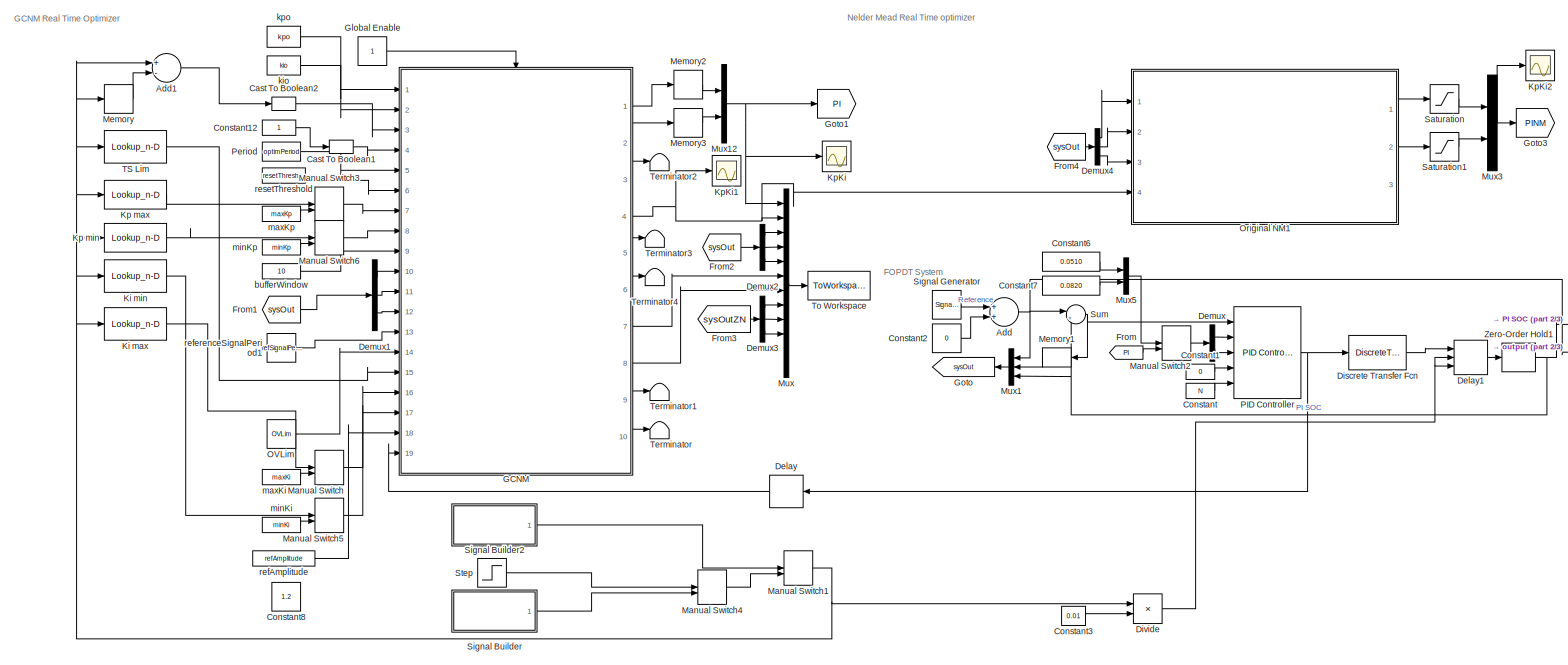
[diagram: root canvas - part 1/3, most of the canvas]
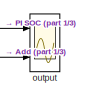
[diagram: root canvas - part 2/3, middle right region]
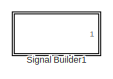
[diagram: root canvas - part 3/3, bottom left region]
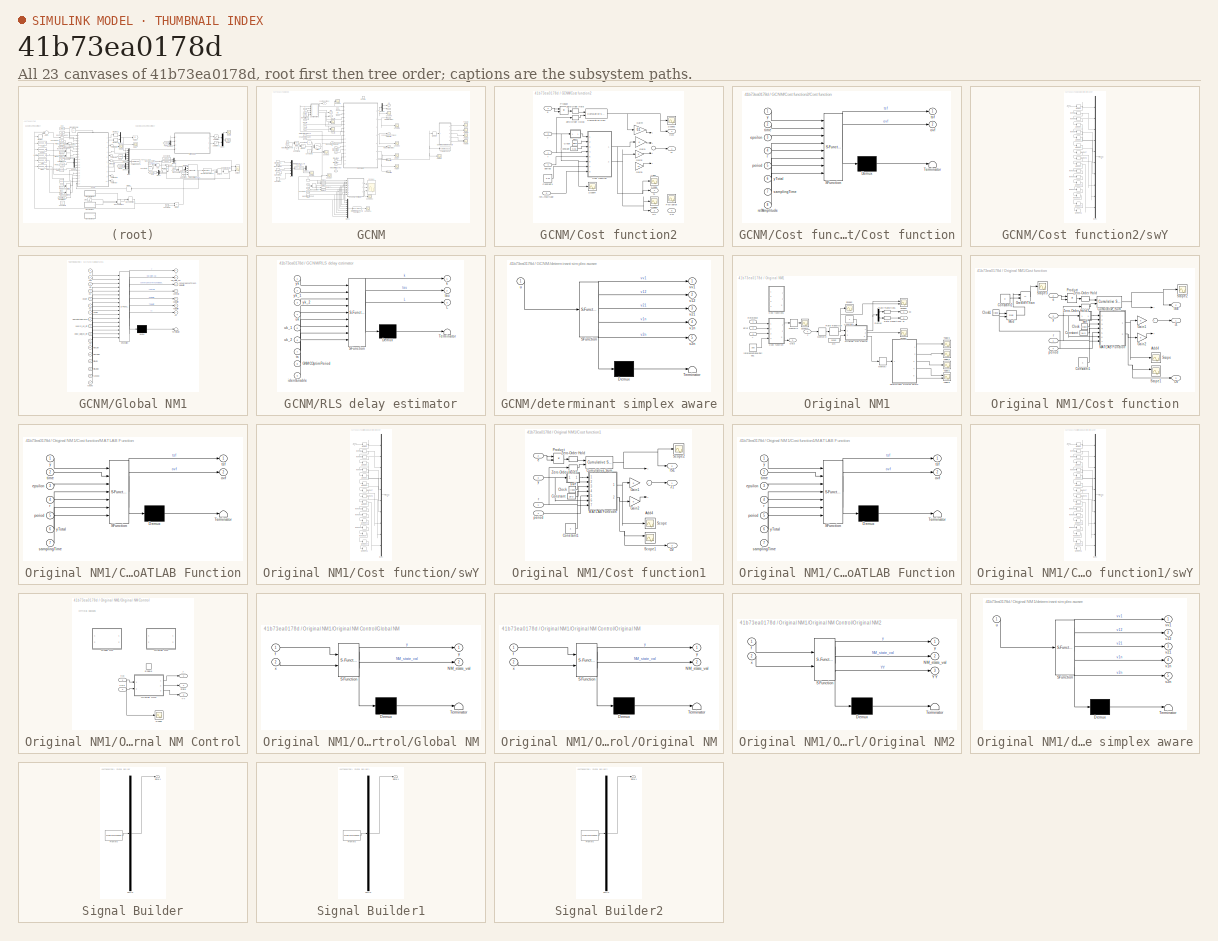
[diagram: thumbnail index - all 23 canvases of the model, root first then tree order]
MODEL slx_41b73ea0178d
KIND model
CONFIG AbsTol = auto
CONFIG EnableMultiTasking = off
CONFIG FixedStep = 0.01
CONFIG MaxStep = auto
CONFIG MinStep = auto
CONFIG RelTol = 1e-3
CONFIG SampleTimeConstraint = Unconstrained
CONFIG Solver = FixedStepAuto
CONFIG SolverName = FixedStepAuto
CONFIG StartTime = 0.0
CONFIG StopTime = 30000
BLOCK [Sum] Add
  InputSameDT = off
  OutDataTypeStr = Inherit: Inherit via internal rule
  Ports = [2, 1]
  SaturateOnIntegerOverflow = off
BLOCK [Sum] Add1
  InputSameDT = off
  Inputs = +-
  OutDataTypeStr = Inherit: Inherit via internal rule
  Ports = [2, 1]
  SaturateOnIntegerOverflow = off
BLOCK [DataTypeConversion] Cast To Boolean1
  OutDataTypeStr = boolean
  RndMeth = Floor
  SaturateOnIntegerOverflow = off
BLOCK [DataTypeConversion] Cast To Boolean2
  OutDataTypeStr = boolean
  RndMeth = Floor
  SaturateOnIntegerOverflow = off
BLOCK [Constant] Constant
  Value = N
BLOCK [Constant] Constant1
  Value = 0
BLOCK [Constant] Constant12
  OutDataTypeStr = boolean
BLOCK [Constant] Constant2
  Value = 0
BLOCK [Constant] Constant3
  Value = 0.01
BLOCK [Constant] Constant6
  Value = 0.0510
BLOCK [Constant] Constant7
  Value = 0.0820
BLOCK [Constant] Constant8
  Value = 1.2
BLOCK [Delay] Delay
  DelayLength = 1
  InputPortMap = u0
  Ports = [1, 1]
BLOCK [Delay] Delay1
  DelayLengthSource = Input port
  DelayLengthUpperLimit = 1000
  InitialConditionSource = Input port
  InputPortMap = u0,p1,p4
  Ports = [3, 1]
BLOCK [Demux] Demux
  DisplayOption = bar
  Outputs = 2
  Ports = [1, 2]
BLOCK [Demux] Demux1
  DisplayOption = bar
  Outputs = 3
  Ports = [1, 3]
BLOCK [Demux] Demux2
  DisplayOption = bar
  Outputs = 3
  Ports = [1, 3]
BLOCK [Demux] Demux3
  DisplayOption = bar
  Outputs = 3
  Ports = [1, 3]
BLOCK [Demux] Demux4
  Commented = on
  DisplayOption = bar
  Outputs = 3
  Ports = [1, 3]
BLOCK [DiscreteTransferFcn] Discrete Transfer Fcn
  Denominator = [1 -0.9048]
  InputPortMap = u0
  Numerator = [0.04762 0.04762]
  Ports = [1, 1]
BLOCK [Product] Divide
  InputSameDT = off
  Inputs = */
  OutDataTypeStr = Inherit: Inherit via internal rule
  Ports = [2, 1]
  RndMeth = Floor
  SaturateOnIntegerOverflow = off
BLOCK [From] From
  GotoTag = PI
BLOCK [From] From1
  GotoTag = sysOut
BLOCK [From] From2
  GotoTag = sysOut
BLOCK [From] From3
  GotoTag = sysOutZN
BLOCK [From] From4
  Commented = on
  GotoTag = sysOut
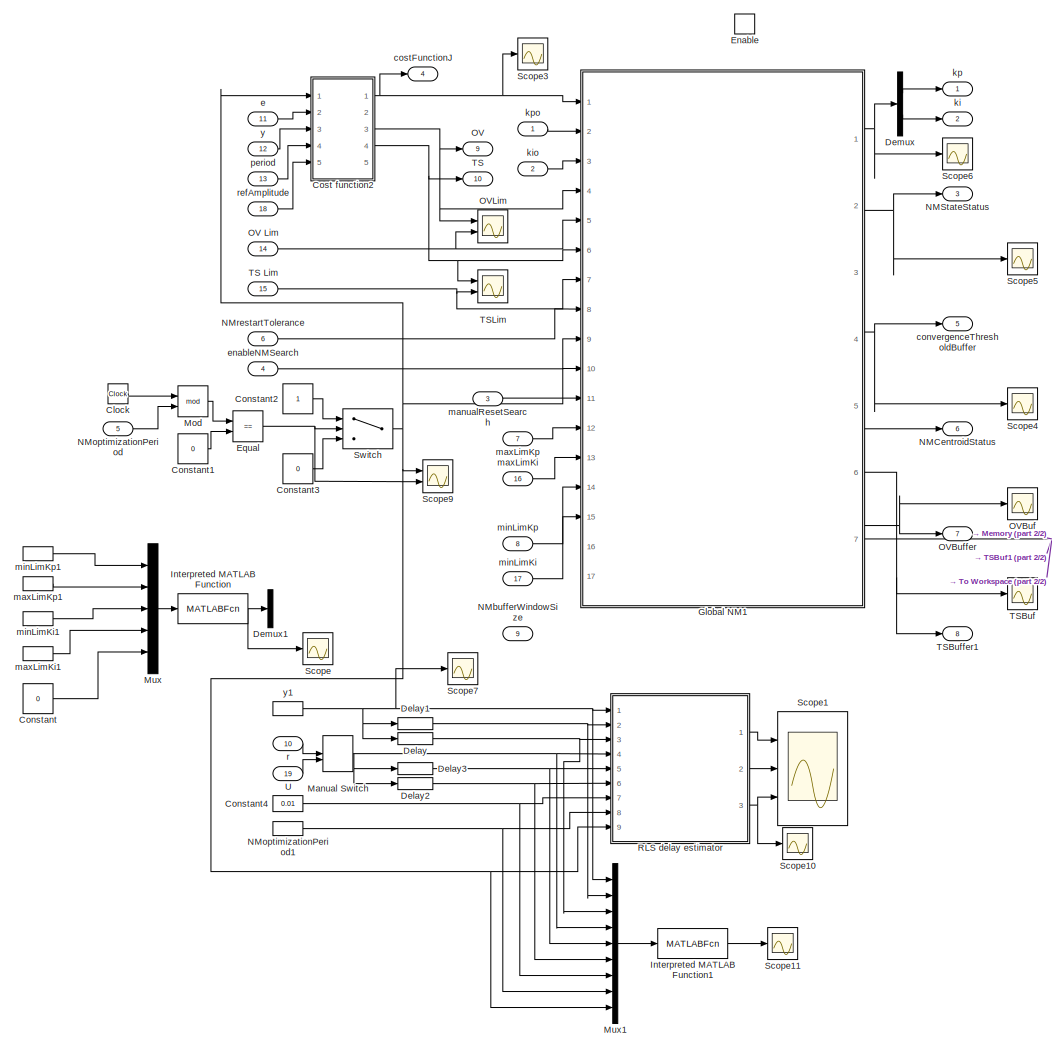
[diagram: GCNM - part 1/2, left side, full height]
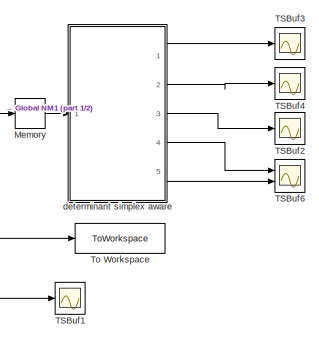
[diagram: GCNM - part 2/2, middle right region]
BLOCK [SubSystem] GCNM
  Ports = [19, 10, 1]
  RequestExecContextInheritance = off
BLOCK [Inport] GCNM/  OV Lim
  IconDisplay = Port number
  OutDataTypeStr = double
  Port = 14
BLOCK [Inport] GCNM/  U
  IconDisplay = Port number
  OutDataTypeStr = double
  Port = 19
BLOCK [Inport] GCNM/  e
  IconDisplay = Port number
  OutDataTypeStr = double
  Port = 11
BLOCK [Outport] GCNM/  ki
  IconDisplay = Port number
  OutDataTypeStr = double
  Port = 2
BLOCK [Outport] GCNM/  kp
  IconDisplay = Port number
  OutDataTypeStr = double
BLOCK [Inport] GCNM/  period
  IconDisplay = Port number
  OutDataTypeStr = double
  Port = 13
BLOCK [Inport] GCNM/  y
  IconDisplay = Port number
  OutDataTypeStr = double
  Port = 12
BLOCK [InportShadow] GCNM/  y1
  IconDisplay = Port number
  OutDataTypeStr = double
  Port = 12
BLOCK [Clock] GCNM/Clock
BLOCK [Constant] GCNM/Constant
  Value = 0
BLOCK [Constant] GCNM/Constant1
  Value = 0
BLOCK [Constant] GCNM/Constant2
BLOCK [Constant] GCNM/Constant3
  Value = 0
BLOCK [Constant] GCNM/Constant4
  Value = 0.01
BLOCK [SubSystem] GCNM/Cost function2
  Ports = [5, 5]
  RequestExecContextInheritance = off
BLOCK [Sum] GCNM/Cost function2/Add4
  InputSameDT = off
  Inputs = ++++
  OutDataTypeStr = Inherit: Inherit via internal rule
  Ports = [4, 1]
  SaturateOnIntegerOverflow = off
BLOCK [Clock] GCNM/Cost function2/Clock
BLOCK [Constant] GCNM/Cost function2/Constant
  Value = 0.01
BLOCK [Constant] GCNM/Cost function2/Constant1
  Value = 0.01
BLOCK [SubSystem] GCNM/Cost function2/Cost function
  ErrorFcn = Stateflow.Translate.translate
  PermitHierarchicalResolution = ExplicitOnly
  Ports = [8, 2]
  RequestExecContextInheritance = off
  SFBlockType = MATLAB Function
  TreatAsAtomicUnit = on
BLOCK [Demux] GCNM/Cost function2/Cost function/ Demux 
  Outputs = 1
  Ports = [1, 1]
BLOCK [S-Function] GCNM/Cost function2/Cost function/ SFunction 
  EnableBusSupport = on
  FunctionName = sf_sfun
  PortCounts = [8 3]
  Ports = [8, 3]
  SFcnIsStateOwnerBlock = off
  SFunctionDeploymentMode = off
  Tag = Stateflow S-Function 8
BLOCK [Terminator] GCNM/Cost function2/Cost function/ Terminator 
BLOCK [Inport] GCNM/Cost function2/Cost function/epsilon
  IconDisplay = Port number
  Port = 3
BLOCK [Outport] GCNM/Cost function2/Cost function/ovf
  IconDisplay = Port number
  Port = 2
BLOCK [Inport] GCNM/Cost function2/Cost function/period
  IconDisplay = Port number
  Port = 5
BLOCK [Inport] GCNM/Cost function2/Cost function/r
  IconDisplay = Port number
  Port = 4
BLOCK [Inport] GCNM/Cost function2/Cost function/refAmplitude
  IconDisplay = Port number
  Port = 8
BLOCK [Inport] GCNM/Cost function2/Cost function/samplingTime
  IconDisplay = Port number
  Port = 7
BLOCK [Inport] GCNM/Cost function2/Cost function/time
  IconDisplay = Port number
  Port = 2
BLOCK [Outport] GCNM/Cost function2/Cost function/tsf
  IconDisplay = Port number
BLOCK [Inport] GCNM/Cost function2/Cost function/y
  IconDisplay = Port number
BLOCK [Inport] GCNM/Cost function2/Cost function/yTotal
  IconDisplay = Port number
  Port = 6
BLOCK [Reference] GCNM/Cost function2/Cumulative Sum  REF=dspmathops/Cumulative
Sum
  Ports = [2, 1]
  SourceBlock = dspmathops/Cumulative\nSum
  SourceProductBaseCode = DS
  SourceProductName = DSP System Toolbox
  SourceType = Cumulative Sum
  UserDataPersistent = on
BLOCK [Gain] GCNM/Cost function2/Gain1
  OutDataTypeStr = Inherit: Inherit via internal rule
  ParamDataTypeStr = Inherit: Inherit via internal rule
  SaturateOnIntegerOverflow = off
BLOCK [Gain] GCNM/Cost function2/Gain2
  Gain = 5
  OutDataTypeStr = Inherit: Inherit via internal rule
  ParamDataTypeStr = Inherit: Inherit via internal rule
  SaturateOnIntegerOverflow = off
BLOCK [Gain] GCNM/Cost function2/Gain3
  Commented = on
  Gain = 10
  OutDataTypeStr = Inherit: Inherit via internal rule
  ParamDataTypeStr = Inherit: Inherit via internal rule
  SaturateOnIntegerOverflow = off
BLOCK [Gain] GCNM/Cost function2/Gain4
  Gain = 0.1
  OutDataTypeStr = Inherit: Inherit via internal rule
  ParamDataTypeStr = Inherit: Inherit via internal rule
  SaturateOnIntegerOverflow = off
BLOCK [Outport] GCNM/Cost function2/ISE
  IconDisplay = Port number
  Port = 2
BLOCK [Outport] GCNM/Cost function2/J1
  IconDisplay = Port number
BLOCK [Outport] GCNM/Cost function2/OV
  IconDisplay = Port number
  Port = 3
BLOCK [Outport] GCNM/Cost function2/PM
  IconDisplay = Port number
  Port = 5
BLOCK [Scope] GCNM/Cost function2/PMApprox
  Floating = off
  NumInputPorts = 1
  Ports = [1]
  ScopeSpecificationString = Simulink.scopes.TimeScopeBlockCfg('CurrentConfiguration', extmgr.ConfigurationSet(extmgr.Configuration('Core','General UI',true),extmgr.Configuration('Core','Source UI',true),extmgr.Configuration('Sources','WiredSimulink',true,'DataLoggingVariableName','ScopeData11'),extmgr.Configuration('Visuals','Time Domain',true,'SerializedDisplays',{struct('MinYLimReal','-29.00246','MaxYLimReal','104.36493','...<+1469ch>
BLOCK [Product] GCNM/Cost function2/Product
  InputSameDT = off
  OutDataTypeStr = Inherit: Inherit via internal rule
  Ports = [2, 1]
  RndMeth = Floor
  SaturateOnIntegerOverflow = off
BLOCK [Scope] GCNM/Cost function2/Scope
  Floating = off
  NumInputPorts = 1
  Ports = [1]
  ScopeSpecificationString = Simulink.scopes.TimeScopeBlockCfg('CurrentConfiguration', extmgr.ConfigurationSet(extmgr.Configuration('Core','General UI',true),extmgr.Configuration('Core','Source UI',true),extmgr.Configuration('Sources','WiredSimulink',true,'DataLoggingVariableName','ScopeData1'),extmgr.Configuration('Visuals','Time Domain',true,'SerializedDisplays',{struct('MinYLimReal','-17.5','MaxYLimReal','157.5','YLabelRea...<+1440ch>
BLOCK [Scope] GCNM/Cost function2/Scope1
  Floating = off
  NumInputPorts = 1
  Ports = [1]
  ScopeSpecificationString = Simulink.scopes.TimeScopeBlockCfg('CurrentConfiguration', extmgr.ConfigurationSet(extmgr.Configuration('Core','General UI',true),extmgr.Configuration('Core','Source UI',true),extmgr.Configuration('Sources','WiredSimulink',true,'DataLoggingVariableName','ScopeData1'),extmgr.Configuration('Visuals','Time Domain',true,'SerializedDisplays',{struct('MinYLimReal','-12.5','MaxYLimReal','112.5','YLabelRea...<+1440ch>
BLOCK [Scope] GCNM/Cost function2/Scope2
  Floating = off
  NumInputPorts = 1
  Ports = [1]
  ScopeSpecificationString = Simulink.scopes.TimeScopeBlockCfg('CurrentConfiguration', extmgr.ConfigurationSet(extmgr.Configuration('Core','General UI',true),extmgr.Configuration('Core','Source UI',true),extmgr.Configuration('Sources','WiredSimulink',true,'DataLoggingVariableName','ScopeData1'),extmgr.Configuration('Visuals','Time Domain',true,'SerializedDisplays',{struct('MinYLimReal','-9539.97037','MaxYLimReal','89724.26581...<+1472ch>
BLOCK [Scope] GCNM/Cost function2/Scope4
  Floating = off
  NumInputPorts = 1
  Ports = [1]
  ScopeSpecificationString = Simulink.scopes.TimeScopeBlockCfg('CurrentConfiguration', extmgr.ConfigurationSet(extmgr.Configuration('Core','General UI',true),extmgr.Configuration('Core','Source UI',true),extmgr.Configuration('Sources','WiredSimulink',true,'DataLoggingVariableName','ScopeData12'),extmgr.Configuration('Visuals','Time Domain',true,'SerializedDisplays',{struct('MinYLimReal','-7.46328','MaxYLimReal','67.16949','YL...<+1443ch>
BLOCK [Outport] GCNM/Cost function2/Ts
  IconDisplay = Port number
  Port = 4
BLOCK [ZeroOrderHold] GCNM/Cost function2/Zero-Order Hold
  SampleTime = -1
BLOCK [ZeroOrderHold] GCNM/Cost function2/Zero-Order Hold3
  SampleTime = -1
BLOCK [Inport] GCNM/Cost function2/e
  IconDisplay = Port number
  Port = 2
BLOCK [Inport] GCNM/Cost function2/period
  IconDisplay = Port number
  Port = 4
BLOCK [Inport] GCNM/Cost function2/r
  IconDisplay = Port number
BLOCK [Inport] GCNM/Cost function2/refAmplitude
  IconDisplay = Port number
  Port = 5
BLOCK [SubSystem] GCNM/Cost function2/swY
  Ports = [1, 1]
  RequestExecContextInheritance = off
BLOCK [Inport] GCNM/Cost function2/swY/I
  IconDisplay = Port number
BLOCK [Memory] GCNM/Cost function2/swY/Memory
BLOCK [Memory] GCNM/Cost function2/swY/Memory1
BLOCK [Memory] GCNM/Cost function2/swY/Memory10
BLOCK [Memory] GCNM/Cost function2/swY/Memory11
BLOCK [Memory] GCNM/Cost function2/swY/Memory12
BLOCK [Memory] GCNM/Cost function2/swY/Memory13
BLOCK [Memory] GCNM/Cost function2/swY/Memory14
BLOCK [Memory] GCNM/Cost function2/swY/Memory15
BLOCK [Memory] GCNM/Cost function2/swY/Memory17
BLOCK [Memory] GCNM/Cost function2/swY/Memory2
BLOCK [Memory] GCNM/Cost function2/swY/Memory3
BLOCK [Memory] GCNM/Cost function2/swY/Memory4
BLOCK [Memory] GCNM/Cost function2/swY/Memory5
BLOCK [Memory] GCNM/Cost function2/swY/Memory6
BLOCK [Memory] GCNM/Cost function2/swY/Memory7
BLOCK [Memory] GCNM/Cost function2/swY/Memory8
BLOCK [Memory] GCNM/Cost function2/swY/Memory9
BLOCK [Mux] GCNM/Cost function2/swY/Mux3
  DisplayOption = bar
  Inputs = 10
  Ports = [10, 1]
BLOCK [Outport] GCNM/Cost function2/swY/O
  IconDisplay = Port number
BLOCK [Inport] GCNM/Cost function2/y
  IconDisplay = Port number
  Port = 3
BLOCK [Delay] GCNM/Delay
  Commented = on
  InputPortMap = u0
  Ports = [1, 1]
BLOCK [Delay] GCNM/Delay1
  Commented = on
  DelayLength = 1
  InputPortMap = u0
  Ports = [1, 1]
BLOCK [Delay] GCNM/Delay2
  Commented = on
  InputPortMap = u0
  Ports = [1, 1]
BLOCK [Delay] GCNM/Delay3
  Commented = on
  DelayLength = 1
  InputPortMap = u0
  Ports = [1, 1]
BLOCK [Demux] GCNM/Demux
  DisplayOption = bar
  Outputs = 2
  Ports = [1, 2]
BLOCK [Demux] GCNM/Demux1
  Commented = on
  DisplayOption = bar
  Outputs = 2
  Ports = [1, 2]
BLOCK [EnablePort] GCNM/Enable
  Ports = []
BLOCK [RelationalOperator] GCNM/Equal
  InputSameDT = off
  Operator = ==
  Ports = [2, 1]
  RndMeth = Simplest
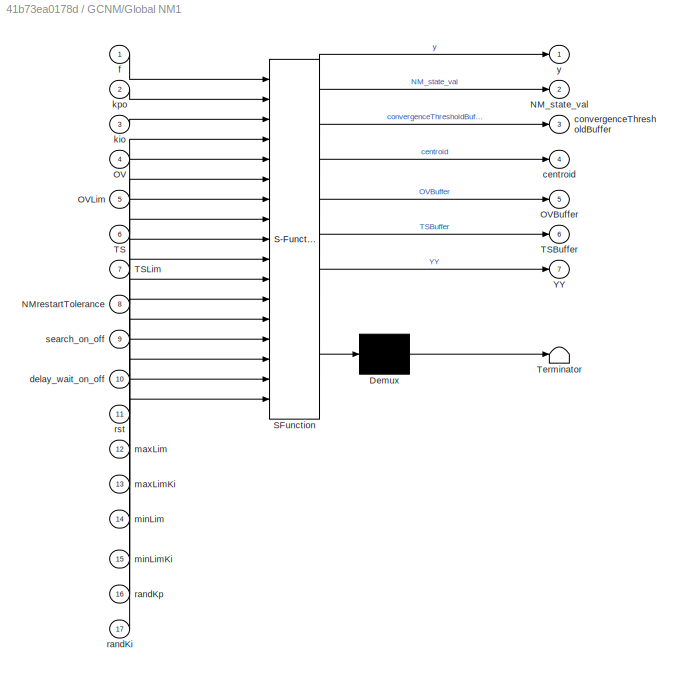
BLOCK [SubSystem] GCNM/Global NM1
  ErrorFcn = Stateflow.Translate.translate
  PermitHierarchicalResolution = ExplicitOnly
  Ports = [17, 7]
  RequestExecContextInheritance = off
  SFBlockType = MATLAB Function
  TreatAsAtomicUnit = on
BLOCK [Demux] GCNM/Global NM1/ Demux 
  Outputs = 1
  Ports = [1, 1]
BLOCK [S-Function] GCNM/Global NM1/ SFunction 
  EnableBusSupport = on
  FunctionName = sf_sfun
  PortCounts = [17 8]
  Ports = [17, 8]
  SFcnIsStateOwnerBlock = off
  SFunctionDeploymentMode = off
  Tag = Stateflow S-Function 3
BLOCK [Terminator] GCNM/Global NM1/ Terminator 
BLOCK [Outport] GCNM/Global NM1/NM_state_val
  IconDisplay = Port number
  Port = 2
BLOCK [Inport] GCNM/Global NM1/NMrestartTolerance
  IconDisplay = Port number
  Port = 8
BLOCK [Inport] GCNM/Global NM1/OV
  IconDisplay = Port number
  Port = 4
BLOCK [Outport] GCNM/Global NM1/OVBuffer
  IconDisplay = Port number
  Port = 5
BLOCK [Inport] GCNM/Global NM1/OVLim
  IconDisplay = Port number
  Port = 5
BLOCK [Inport] GCNM/Global NM1/TS
  IconDisplay = Port number
  Port = 6
BLOCK [Outport] GCNM/Global NM1/TSBuffer
  IconDisplay = Port number
  Port = 6
BLOCK [Inport] GCNM/Global NM1/TSLim
  IconDisplay = Port number
  Port = 7
BLOCK [Outport] GCNM/Global NM1/YY
  IconDisplay = Port number
  Port = 7
BLOCK [Outport] GCNM/Global NM1/centroid
  IconDisplay = Port number
  Port = 4
BLOCK [Outport] GCNM/Global NM1/convergenceThresholdBuffer
  IconDisplay = Port number
  Port = 3
BLOCK [Inport] GCNM/Global NM1/delay_wait_on_off
  IconDisplay = Port number
  Port = 10
BLOCK [Inport] GCNM/Global NM1/f
  IconDisplay = Port number
BLOCK [Inport] GCNM/Global NM1/kio
  IconDisplay = Port number
  Port = 3
BLOCK [Inport] GCNM/Global NM1/kpo
  IconDisplay = Port number
  Port = 2
BLOCK [Inport] GCNM/Global NM1/maxLim
  IconDisplay = Port number
  Port = 12
BLOCK [Inport] GCNM/Global NM1/maxLimKi
  IconDisplay = Port number
  Port = 13
BLOCK [Inport] GCNM/Global NM1/minLim
  IconDisplay = Port number
  Port = 14
BLOCK [Inport] GCNM/Global NM1/minLimKi
  IconDisplay = Port number
  Port = 15
BLOCK [Inport] GCNM/Global NM1/randKi
  IconDisplay = Port number
  Port = 17
BLOCK [Inport] GCNM/Global NM1/randKp
  IconDisplay = Port number
  Port = 16
BLOCK [Inport] GCNM/Global NM1/rst
  IconDisplay = Port number
  Port = 11
BLOCK [Inport] GCNM/Global NM1/search_on_off
  IconDisplay = Port number
  Port = 9
BLOCK [Outport] GCNM/Global NM1/y
  IconDisplay = Port number
BLOCK [MATLABFcn] GCNM/Interpreted MATLAB Function
  Commented = on
  MATLABFcn = FORandGCNM(u(1),u(2),u(3),u(4),u(5))
  OutputDimensions = 2
  Ports = [1, 1]
BLOCK [MATLABFcn] GCNM/Interpreted MATLAB Function1
  Commented = on
  MATLABFcn = RLSIdentFOPDT
  OutputDimensions = 3
  Ports = [1, 1]
BLOCK [ManualSwitch] GCNM/Manual Switch
  Commented = on
BLOCK [Memory] GCNM/Memory
  Commented = on
BLOCK [Math] GCNM/Mod
  Operator = mod
  Ports = [2, 1]
  SignedPower = off
BLOCK [Mux] GCNM/Mux
  Commented = on
  DisplayOption = bar
  Inputs = 5
  Ports = [5, 1]
BLOCK [Mux] GCNM/Mux1
  Commented = on
  DisplayOption = bar
  Inputs = 9
  Ports = [9, 1]
BLOCK [Outport] GCNM/NMCentroidStatus
  IconDisplay = Port number
  OutDataTypeStr = double
  Port = 6
BLOCK [Outport] GCNM/NMStateStatus
  IconDisplay = Port number
  OutDataTypeStr = double
  Port = 3
BLOCK [Inport] GCNM/NMbufferWindowSize
  IconDisplay = Port number
  OutDataTypeStr = uint16
  Port = 9
BLOCK [Inport] GCNM/NMoptimizationPeriod
  IconDisplay = Port number
  OutDataTypeStr = double
  Port = 5
BLOCK [InportShadow] GCNM/NMoptimizationPeriod1
  IconDisplay = Port number
  OutDataTypeStr = double
  Port = 5
BLOCK [Inport] GCNM/NMrestartTolerance
  IconDisplay = Port number
  Port = 6
BLOCK [Outport] GCNM/OV
  IconDisplay = Port number
  OutDataTypeStr = double
  Port = 9
BLOCK [Scope] GCNM/OVBuf
  Floating = off
  NumInputPorts = 1
  Ports = [1]
  ScopeSpecificationString = Simulink.scopes.TimeScopeBlockCfg('CurrentConfiguration', extmgr.ConfigurationSet(extmgr.Configuration('Core','General UI',true),extmgr.Configuration('Core','Source UI',true),extmgr.Configuration('Sources','WiredSimulink',true,'DataLoggingVariableName','ScopeData8'),extmgr.Configuration('Visuals','Time Domain',true,'SerializedDisplays',{struct('MinYLimReal','-2.0049','MaxYLimReal','18.04411','YLab...<+1458ch>
BLOCK [Outport] GCNM/OVBuffer
  IconDisplay = Port number
  OutDataTypeStr = double
  Port = 7
BLOCK [Scope] GCNM/OVLim
  Floating = off
  NumInputPorts = 2
  Ports = [2]
  ScopeSpecificationString = Simulink.scopes.TimeScopeBlockCfg('CurrentConfiguration', extmgr.ConfigurationSet(extmgr.Configuration('Core','General UI',true),extmgr.Configuration('Core','Source UI',true),extmgr.Configuration('Sources','WiredSimulink',true,'DataLoggingVariableName','ScopeData9'),extmgr.Configuration('Visuals','Time Domain',true,'SerializedDisplays',{struct('MinYLimReal','-12.5','MaxYLimReal','45.98062','YLabel...<+1465ch>
BLOCK [SubSystem] GCNM/RLS delay estimator
  Commented = on
  ErrorFcn = Stateflow.Translate.translate
  PermitHierarchicalResolution = ExplicitOnly
  Ports = [9, 3]
  RequestExecContextInheritance = off
  SFBlockType = MATLAB Function
  SystemSampleTime = 0.01
  TreatAsAtomicUnit = on
BLOCK [Demux] GCNM/RLS delay estimator/ Demux 
  Outputs = 1
  Ports = [1, 1]
BLOCK [S-Function] GCNM/RLS delay estimator/ SFunction 
  EnableBusSupport = on
  FunctionName = sf_sfun
  PortCounts = [9 4]
  Ports = [9, 4]
  SFcnIsStateOwnerBlock = off
  SFunctionDeploymentMode = off
  Tag = Stateflow S-Function 2
BLOCK [Terminator] GCNM/RLS delay estimator/ Terminator 
BLOCK [Inport] GCNM/RLS delay estimator/GNMCOptimPeriod
  IconDisplay = Port number
  Port = 8
BLOCK [Outport] GCNM/RLS delay estimator/L
  IconDisplay = Port number
  Port = 3
BLOCK [Inport] GCNM/RLS delay estimator/identEnable
  IconDisplay = Port number
  Port = 9
BLOCK [Outport] GCNM/RLS delay estimator/k
  IconDisplay = Port number
BLOCK [Outport] GCNM/RLS delay estimator/tau
  IconDisplay = Port number
  Port = 2
BLOCK [Inport] GCNM/RLS delay estimator/ts
  IconDisplay = Port number
  Port = 7
BLOCK [Inport] GCNM/RLS delay estimator/uk
  IconDisplay = Port number
  Port = 4
BLOCK [Inport] GCNM/RLS delay estimator/uk_1
  IconDisplay = Port number
  Port = 5
BLOCK [Inport] GCNM/RLS delay estimator/uk_2
  IconDisplay = Port number
  Port = 6
BLOCK [Inport] GCNM/RLS delay estimator/yk
  IconDisplay = Port number
BLOCK [Inport] GCNM/RLS delay estimator/yk_1
  IconDisplay = Port number
  Port = 2
BLOCK [Inport] GCNM/RLS delay estimator/yk_2
  IconDisplay = Port number
  Port = 3
BLOCK [Scope] GCNM/Scope
  Commented = on
  Floating = off
  NumInputPorts = 1
  Ports = [1]
  ScopeSpecificationString = Simulink.scopes.TimeScopeBlockCfg('CurrentConfiguration', extmgr.ConfigurationSet(extmgr.Configuration('Core','General UI',true),extmgr.Configuration('Core','Source UI',true),extmgr.Configuration('Sources','WiredSimulink',true,'DataLoggingVariableName','ScopeData1'),extmgr.Configuration('Visuals','Time Domain',true,'SerializedDisplays',{struct('MinYLimReal','9.22599','MaxYLimReal','140.65268','YLa...<+1445ch>
BLOCK [Scope] GCNM/Scope1
  Commented = on
  Floating = off
  NumInputPorts = 3
  Ports = [3]
  ScopeSpecificationString = Simulink.scopes.TimeScopeBlockCfg('CurrentConfiguration', extmgr.ConfigurationSet(extmgr.Configuration('Core','General UI',true),extmgr.Configuration('Core','Source UI',true),extmgr.Configuration('Sources','WiredSimulink',true,'DataLoggingVariableName','ScopeData1'),extmgr.Configuration('Visuals','Time Domain',true,'SerializedDisplays',{struct('MinYLimReal','-1112293633.01372','MaxYLimReal','13406...<+1682ch>
BLOCK [Scope] GCNM/Scope10
  Commented = on
  Floating = off
  NumInputPorts = 1
  Ports = [1]
  ScopeSpecificationString = Simulink.scopes.TimeScopeBlockCfg('CurrentConfiguration', extmgr.ConfigurationSet(extmgr.Configuration('Core','General UI',true),extmgr.Configuration('Core','Source UI',true),extmgr.Configuration('Sources','WiredSimulink',true,'DataLoggingVariableName','ScopeData3'),extmgr.Configuration('Visuals','Time Domain',true,'SerializedDisplays',{struct('MinYLimReal','0.00844','MaxYLimReal','0.01017','YLabe...<+1489ch>
BLOCK [Scope] GCNM/Scope11
  Commented = on
  Floating = off
  NumInputPorts = 1
  Ports = [1]
  ScopeSpecificationString = Simulink.scopes.TimeScopeBlockCfg('CurrentConfiguration', extmgr.ConfigurationSet(extmgr.Configuration('Core','General UI',true),extmgr.Configuration('Core','Source UI',true),extmgr.Configuration('Sources','WiredSimulink',true,'DataLoggingVariableName','ScopeData1'),extmgr.Configuration('Visuals','Time Domain',true),extmgr.Configuration('Tools','Plot Navigation',true),extmgr.Configuration('Tools',...<+40ch>
BLOCK [Scope] GCNM/Scope3
  Floating = off
  NumInputPorts = 1
  Ports = [1]
  ScopeSpecificationString = Simulink.scopes.TimeScopeBlockCfg('CurrentConfiguration', extmgr.ConfigurationSet(extmgr.Configuration('Core','General UI',true),extmgr.Configuration('Core','Source UI',true),extmgr.Configuration('Sources','WiredSimulink',true,'DataLoggingVariableName','ScopeData11'),extmgr.Configuration('Visuals','Time Domain',true,'SerializedDisplays',{struct('MinYLimReal','-263.88137','MaxYLimReal','2794.93231'...<+1467ch>
BLOCK [Scope] GCNM/Scope4
  Floating = off
  NumInputPorts = 1
  Ports = [1]
  ScopeSpecificationString = Simulink.scopes.TimeScopeBlockCfg('CurrentConfiguration', extmgr.ConfigurationSet(extmgr.Configuration('Core','General UI',true),extmgr.Configuration('Core','Source UI',true),extmgr.Configuration('Sources','WiredSimulink',true,'DataLoggingVariableName','ScopeData12'),extmgr.Configuration('Visuals','Time Domain',true,'SerializedDisplays',{struct('MinYLimReal','-7.17571','MaxYLimReal','111.90841','Y...<+1478ch>
BLOCK [Scope] GCNM/Scope5
  Floating = off
  NumInputPorts = 1
  Ports = [1]
  ScopeSpecificationString = Simulink.scopes.TimeScopeBlockCfg('CurrentConfiguration', extmgr.ConfigurationSet(extmgr.Configuration('Core','General UI',true),extmgr.Configuration('Core','Source UI',true),extmgr.Configuration('Sources','WiredSimulink',true,'DataLoggingVariableName','ScopeData13'),extmgr.Configuration('Visuals','Time Domain',true,'SerializedDisplays',{struct('MinYLimReal','0.25','MaxYLimReal','7.75','YLabelReal...<+1534ch>
BLOCK [Scope] GCNM/Scope6
  Floating = off
  NumInputPorts = 1
  Ports = [1]
  ScopeSpecificationString = Simulink.scopes.TimeScopeBlockCfg('CurrentConfiguration', extmgr.ConfigurationSet(extmgr.Configuration('Core','General UI',true),extmgr.Configuration('Core','Source UI',true),extmgr.Configuration('Sources','WiredSimulink',true,'DataLoggingVariableName','ScopeData14'),extmgr.Configuration('Visuals','Time Domain',true,'SerializedDisplays',{struct('MinYLimReal','0.0216','MaxYLimReal','0.09544','YLabe...<+1466ch>
BLOCK [Scope] GCNM/Scope7
  Floating = off
  NumInputPorts = 1
  Ports = [1]
  ScopeSpecificationString = Simulink.scopes.TimeScopeBlockCfg('CurrentConfiguration', extmgr.ConfigurationSet(extmgr.Configuration('Core','General UI',true),extmgr.Configuration('Core','Source UI',true),extmgr.Configuration('Sources','WiredSimulink',true,'DataLoggingVariableName','ScopeData2'),extmgr.Configuration('Visuals','Time Domain',true,'SerializedDisplays',{struct('MinYLimReal','-2','MaxYLimReal','2','YLabelReal','','...<+2429ch>
BLOCK [Scope] GCNM/Scope9
  Floating = off
  NumInputPorts = 2
  Ports = [2]
  ScopeSpecificationString = Simulink.scopes.TimeScopeBlockCfg('CurrentConfiguration', extmgr.ConfigurationSet(extmgr.Configuration('Core','General UI',true),extmgr.Configuration('Core','Source UI',true),extmgr.Configuration('Sources','WiredSimulink',true,'DataLoggingVariableName','ScopeData13'),extmgr.Configuration('Visuals','Time Domain',true,'SerializedDisplays',{struct('MinYLimReal','-0.125','MaxYLimReal','1.125','YLabelR...<+1410ch>
BLOCK [Switch] GCNM/Switch
  Criteria = u2 ~= 0
  InputSameDT = off
  SaturateOnIntegerOverflow = off
BLOCK [Outport] GCNM/TS
  IconDisplay = Port number
  OutDataTypeStr = double
  Port = 10
BLOCK [Inport] GCNM/TS Lim
  IconDisplay = Port number
  OutDataTypeStr = double
  Port = 15
BLOCK [Scope] GCNM/TSBuf
  Floating = off
  NumInputPorts = 1
  Ports = [1]
  ScopeSpecificationString = Simulink.scopes.TimeScopeBlockCfg('CurrentConfiguration', extmgr.ConfigurationSet(extmgr.Configuration('Core','General UI',true),extmgr.Configuration('Core','Source UI',true),extmgr.Configuration('Sources','WiredSimulink',true,'DataLoggingVariableName','ScopeData15'),extmgr.Configuration('Visuals','Time Domain',true,'SerializedDisplays',{struct('MinYLimReal','-15.625','MaxYLimReal','150.625','YLab...<+1457ch>
BLOCK [Scope] GCNM/TSBuf1
  Commented = on
  Floating = off
  NumInputPorts = 1
  Ports = [1]
  ScopeSpecificationString = Simulink.scopes.TimeScopeBlockCfg('CurrentConfiguration', extmgr.ConfigurationSet(extmgr.Configuration('Core','General UI',true),extmgr.Configuration('Core','Source UI',true),extmgr.Configuration('Sources','WiredSimulink',true,'DataLoggingVariableName','ScopeData2'),extmgr.Configuration('Visuals','Time Domain',true,'SerializedDisplays',{struct('MinYLimReal','81.6','MaxYLimReal','115.6','YLabelReal...<+1522ch>
BLOCK [Scope] GCNM/TSBuf2
  Commented = on
  Floating = off
  NumInputPorts = 1
  Ports = [1]
  ScopeSpecificationString = Simulink.scopes.TimeScopeBlockCfg('CurrentConfiguration', extmgr.ConfigurationSet(extmgr.Configuration('Core','General UI',true),extmgr.Configuration('Core','Source UI',true),extmgr.Configuration('Sources','WiredSimulink',true,'DataLoggingVariableName','ScopeData3'),extmgr.Configuration('Visuals','Time Domain',true,'SerializedDisplays',{struct('MinYLimReal','-25.10847','MaxYLimReal','225.97622','Y...<+1506ch>
BLOCK [Scope] GCNM/TSBuf3
  Commented = on
  Floating = off
  NumInputPorts = 1
  Ports = [1]
  ScopeSpecificationString = Simulink.scopes.TimeScopeBlockCfg('CurrentConfiguration', extmgr.ConfigurationSet(extmgr.Configuration('Core','General UI',true),extmgr.Configuration('Core','Source UI',true),extmgr.Configuration('Sources','WiredSimulink',true,'DataLoggingVariableName','ScopeData4'),extmgr.Configuration('Visuals','Time Domain',true,'SerializedDisplays',{struct('MinYLimReal','-0.165','MaxYLimReal','1.485','YLabelRe...<+1628ch>
BLOCK [Scope] GCNM/TSBuf4
  Commented = on
  Floating = off
  NumInputPorts = 1
  Ports = [1]
  ScopeSpecificationString = Simulink.scopes.TimeScopeBlockCfg('CurrentConfiguration', extmgr.ConfigurationSet(extmgr.Configuration('Core','General UI',true),extmgr.Configuration('Core','Source UI',true),extmgr.Configuration('Sources','WiredSimulink',true,'DataLoggingVariableName','ScopeData5'),extmgr.Configuration('Visuals','Time Domain',true,'SerializedDisplays',{struct('MinYLimReal','-1202.9625','MaxYLimReal','2156.6625','...<+1512ch>
BLOCK [Scope] GCNM/TSBuf6
  Commented = on
  Floating = off
  NumInputPorts = 2
  Ports = [2]
  ScopeSpecificationString = Simulink.scopes.TimeScopeBlockCfg('CurrentConfiguration', extmgr.ConfigurationSet(extmgr.Configuration('Core','General UI',true),extmgr.Configuration('Core','Source UI',true),extmgr.Configuration('Sources','WiredSimulink',true,'DataLoggingVariableName','ScopeData7'),extmgr.Configuration('Visuals','Time Domain',true,'SerializedDisplays',{struct('MinYLimReal','-0.18125','MaxYLimReal','1.63121','YLab...<+1528ch>
BLOCK [Outport] GCNM/TSBuffer1
  IconDisplay = Port number
  OutDataTypeStr = double
  Port = 8
BLOCK [Scope] GCNM/TSLim
  Floating = off
  NumInputPorts = 2
  Ports = [2]
  ScopeSpecificationString = Simulink.scopes.TimeScopeBlockCfg('CurrentConfiguration', extmgr.ConfigurationSet(extmgr.Configuration('Core','General UI',true),extmgr.Configuration('Core','Source UI',true),extmgr.Configuration('Sources','WiredSimulink',true,'DataLoggingVariableName','ScopeData17'),extmgr.Configuration('Visuals','Time Domain',true,'SerializedDisplays',{struct('MinYLimReal','-12.2575','MaxYLimReal','167.9175','YL...<+1471ch>
BLOCK [ToWorkspace] GCNM/To Workspace
  Commented = on
  FixptAsFi = on
  MaxDataPoints = inf
  Ports = [1]
  SampleTime = -1
  VariableName = vecSim
BLOCK [Outport] GCNM/convergenceThresholdBuffer
  IconDisplay = Port number
  OutDataTypeStr = double
  Port = 5
BLOCK [Outport] GCNM/costFunctionJ
  IconDisplay = Port number
  OutDataTypeStr = double
  Port = 4
BLOCK [SubSystem] GCNM/determinant simplex aware
  Commented = on
  ErrorFcn = Stateflow.Translate.translate
  PermitHierarchicalResolution = ExplicitOnly
  Ports = [1, 5]
  RequestExecContextInheritance = off
  SFBlockType = MATLAB Function
  TreatAsAtomicUnit = on
BLOCK [Demux] GCNM/determinant simplex aware/ Demux 
  Outputs = 1
  Ports = [1, 1]
BLOCK [S-Function] GCNM/determinant simplex aware/ SFunction 
  EnableBusSupport = on
  FunctionName = sf_sfun
  PortCounts = [1 6]
  Ports = [1, 6]
  SFcnIsStateOwnerBlock = off
  SFunctionDeploymentMode = off
  Tag = Stateflow S-Function 5
BLOCK [Terminator] GCNM/determinant simplex aware/ Terminator 
BLOCK [Inport] GCNM/determinant simplex aware/u
  IconDisplay = Port number
BLOCK [Outport] GCNM/determinant simplex aware/v12
  IconDisplay = Port number
  Port = 2
BLOCK [Outport] GCNM/determinant simplex aware/v1n
  IconDisplay = Port number
  Port = 4
BLOCK [Outport] GCNM/determinant simplex aware/v21
  IconDisplay = Port number
  Port = 3
BLOCK [Outport] GCNM/determinant simplex aware/v2n
  IconDisplay = Port number
  Port = 5
BLOCK [Outport] GCNM/determinant simplex aware/vv1
  IconDisplay = Port number
BLOCK [Inport] GCNM/enableNMSearch
  IconDisplay = Port number
  OutDataTypeStr = boolean
  Port = 4
BLOCK [Inport] GCNM/kio
  IconDisplay = Port number
  OutDataTypeStr = double
  Port = 2
BLOCK [Inport] GCNM/kpo
  IconDisplay = Port number
  OutDataTypeStr = double
BLOCK [Inport] GCNM/manualResetSearch
  IconDisplay = Port number
  OutDataTypeStr = boolean
  Port = 3
BLOCK [Inport] GCNM/maxLimKi
  IconDisplay = Port number
  OutDataTypeStr = double
  Port = 16
BLOCK [InportShadow] GCNM/maxLimKi1
  IconDisplay = Port number
  OutDataTypeStr = double
  Port = 16
BLOCK [Inport] GCNM/maxLimKp
  IconDisplay = Port number
  OutDataTypeStr = double
  Port = 7
BLOCK [InportShadow] GCNM/maxLimKp1
  IconDisplay = Port number
  OutDataTypeStr = double
  Port = 7
BLOCK [Inport] GCNM/minLimKi
  IconDisplay = Port number
  OutDataTypeStr = double
  Port = 17
BLOCK [InportShadow] GCNM/minLimKi1
  IconDisplay = Port number
  OutDataTypeStr = double
  Port = 17
BLOCK [Inport] GCNM/minLimKp
  IconDisplay = Port number
  OutDataTypeStr = double
  Port = 8
BLOCK [InportShadow] GCNM/minLimKp1
  IconDisplay = Port number
  OutDataTypeStr = double
  Port = 8
BLOCK [Inport] GCNM/r
  IconDisplay = Port number
  Port = 10
BLOCK [Inport] GCNM/refAmplitude
  IconDisplay = Port number
  OutDataTypeStr = double
  Port = 18
BLOCK [Constant] Global Enable
BLOCK [Goto] Goto
  GotoTag = sysOut
BLOCK [Goto] Goto1
  GotoTag = PI
BLOCK [Goto] Goto3
  Commented = on
  GotoTag = PINM
BLOCK [Lookup_n-D] Ki max
  BreakpointsForDimension1 = [0.1 0.5 1 2 3 4 5 6 7 8 9 10]
  InternalRulePriority = Speed
  NumberOfTableDimensions = 1
  Ports = [1, 1]
  RndMeth = Simplest
  Table = [11\n1.61\n0.9\n0.4\n0.4\n0.3\n0.18\n0.15\n0.12\n0.1\n0.09\n0.07]
  UseOneInputPortForAllInputData = on
BLOCK [Lookup_n-D] Ki min
  BreakpointsForDimension1 = [0.1 0.5 1 2 3 4 5 6 7 8 9 10]
  InternalRulePriority = Speed
  NumberOfTableDimensions = 1
  Ports = [1, 1]
  RndMeth = Simplest
  Table = [1.1\n0.41\n0.21\n0.21\n0.11\n0.11\n0.061\n0.06\n0.061\n0.061\n0.061\n0.041]
  UseOneInputPortForAllInputData = on
BLOCK [Lookup_n-D] Kp max
  BreakpointsForDimension1 = [0.1 0.5 1 2 3 4 5 6 7 8 9 10]
  InternalRulePriority = Speed
  NumberOfTableDimensions = 1
  Ports = [1, 1]
  RndMeth = Simplest
  Table = [16\n3.21\n1.8\n1\n1\n0.9\n0.68\n0.73\n0.69\n0.67\n0.63\n0.54]
  UseOneInputPortForAllInputData = on
BLOCK [Lookup_n-D] Kp min
  BreakpointsForDimension1 = [0.1 0.5 1 2 3 4 5 6 7 8 9 10]
  InternalRulePriority = Speed
  NumberOfTableDimensions = 1
  Ports = [1, 1]
  RndMeth = Simplest
  Table = [0.1\n0.01\n0.01\n0.01\n0.01\n0.01\n0.01\n0.01\n0.01\n0.01\n0.01\n0.01\n]
  UseOneInputPortForAllInputData = on
BLOCK [Scope] KpKi
  Floating = off
  NumInputPorts = 1
  Ports = [1]
  ScopeSpecificationString = Simulink.scopes.TimeScopeBlockCfg('CurrentConfiguration', extmgr.ConfigurationSet(extmgr.Configuration('Core','General UI',true),extmgr.Configuration('Core','Source UI',true),extmgr.Configuration('Sources','WiredSimulink',true,'DataLoggingVariableName','ScopeData4'),extmgr.Configuration('Visuals','Time Domain',true,'SerializedDisplays',{struct('MinYLimReal','-0.12257','MaxYLimReal','1.23584','YLab...<+1674ch>
BLOCK [Scope] KpKi1
  Floating = off
  NumInputPorts = 1
  Ports = [1]
  ScopeSpecificationString = Simulink.scopes.TimeScopeBlockCfg('CurrentConfiguration', extmgr.ConfigurationSet(extmgr.Configuration('Core','General UI',true),extmgr.Configuration('Core','Source UI',true),extmgr.Configuration('Sources','WiredSimulink',true,'DataLoggingVariableName','ScopeData1'),extmgr.Configuration('Visuals','Time Domain',true,'SerializedDisplays',{struct('MinYLimReal','-45369611610017518000753647322591791222...<+2248ch>
BLOCK [Scope] KpKi2
  Commented = on
  Floating = off
  NumInputPorts = 1
  Ports = [1]
  ScopeSpecificationString = Simulink.scopes.TimeScopeBlockCfg('CurrentConfiguration', extmgr.ConfigurationSet(extmgr.Configuration('Core','General UI',true),extmgr.Configuration('Core','Source UI',true),extmgr.Configuration('Sources','WiredSimulink',true,'DataLoggingVariableName','ScopeData1'),extmgr.Configuration('Visuals','Time Domain',true,'SerializedDisplays',{struct('MinYLimReal','-0.12387','MaxYLimReal','1.12488','YLab...<+1565ch>
BLOCK [ManualSwitch] Manual Switch
BLOCK [ManualSwitch] Manual Switch1
BLOCK [ManualSwitch] Manual Switch2
  CurrentSetting = 0
BLOCK [ManualSwitch] Manual Switch3
BLOCK [ManualSwitch] Manual Switch4
  CurrentSetting = 0
BLOCK [ManualSwitch] Manual Switch5
BLOCK [ManualSwitch] Manual Switch6
BLOCK [Memory] Memory
BLOCK [Memory] Memory1
BLOCK [Memory] Memory2
  InitialCondition = kpo
BLOCK [Memory] Memory3
  InitialCondition = kio
BLOCK [Mux] Mux
  DisplayOption = bar
  Inputs = 12
  Ports = [12, 1]
BLOCK [Mux] Mux1
  DisplayOption = bar
  Inputs = 3
  Ports = [3, 1]
BLOCK [Mux] Mux12
  DisplayOption = bar
  Inputs = 2
  Ports = [2, 1]
BLOCK [Mux] Mux3
  Commented = on
  DisplayOption = bar
  Inputs = 2
  Ports = [2, 1]
BLOCK [Mux] Mux5
  DisplayOption = bar
  Inputs = 2
  Ports = [2, 1]
BLOCK [Constant] OVLim
  Value = OVLim
BLOCK [SubSystem] Original NM1
  Commented = on
  Ports = [4, 3]
  RequestExecContextInheritance = off
BLOCK [Constant] Original NM1/Constant1
BLOCK [SubSystem] Original NM1/Cost function
  Commented = on
  Ports = [4, 3]
  RequestExecContextInheritance = off
BLOCK [Sum] Original NM1/Cost function/Add4
  InputSameDT = off
  Inputs = +++
  OutDataTypeStr = Inherit: Inherit via internal rule
  Ports = [3, 1]
  SaturateOnIntegerOverflow = off
BLOCK [Clock] Original NM1/Cost function/Clock
BLOCK [Clock] Original NM1/Cost function/Clock1
BLOCK [Constant] Original NM1/Cost function/Constant
  Value = 1e-3
BLOCK [Constant] Original NM1/Cost function/Constant1
BLOCK [Constant] Original NM1/Cost function/Constant2
  Value = 0
BLOCK [Reference] Original NM1/Cost function/Cumulative Sum  REF=dspmathops/Cumulative
Sum
  Ports = [2, 1]
  SourceBlock = dspmathops/Cumulative\nSum
  SourceProductBaseCode = DS
  SourceProductName = DSP System Toolbox
  SourceType = Cumulative Sum
  UserDataPersistent = on
BLOCK [Gain] Original NM1/Cost function/Gain1
  Gain = 5
  OutDataTypeStr = Inherit: Inherit via internal rule
  ParamDataTypeStr = Inherit: Inherit via internal rule
  SaturateOnIntegerOverflow = off
BLOCK [Gain] Original NM1/Cost function/Gain2
  Gain = 5
  OutDataTypeStr = Inherit: Inherit via internal rule
  ParamDataTypeStr = Inherit: Inherit via internal rule
  SaturateOnIntegerOverflow = off
BLOCK [RelationalOperator] Original NM1/Cost function/GreaterThan
  InputSameDT = off
  Operator = ==
  OutDataTypeStr = boolean
  Ports = [2, 1]
  RndMeth = Simplest
BLOCK [Outport] Original NM1/Cost function/ISE
  IconDisplay = Port number
  Port = 2
BLOCK [Outport] Original NM1/Cost function/J1
  IconDisplay = Port number
BLOCK [SubSystem] Original NM1/Cost function/MATLAB Function
  ErrorFcn = Stateflow.Translate.translate
  PermitHierarchicalResolution = ExplicitOnly
  Ports = [7, 2]
  RequestExecContextInheritance = off
  SFBlockType = MATLAB Function
  TreatAsAtomicUnit = on
BLOCK [Demux] Original NM1/Cost function/MATLAB Function/ Demux 
  Outputs = 1
  Ports = [1, 1]
BLOCK [S-Function] Original NM1/Cost function/MATLAB Function/ SFunction 
  EnableBusSupport = on
  FunctionName = sf_sfun
  PortCounts = [7 3]
  Ports = [7, 3]
  SFcnIsStateOwnerBlock = off
  SFunctionDeploymentMode = off
  Tag = Stateflow S-Function 9
BLOCK [Terminator] Original NM1/Cost function/MATLAB Function/ Terminator 
BLOCK [Inport] Original NM1/Cost function/MATLAB Function/epsilon
  IconDisplay = Port number
  Port = 3
BLOCK [Outport] Original NM1/Cost function/MATLAB Function/ovf
  IconDisplay = Port number
  Port = 2
BLOCK [Inport] Original NM1/Cost function/MATLAB Function/period
  IconDisplay = Port number
  Port = 5
BLOCK [Inport] Original NM1/Cost function/MATLAB Function/r
  IconDisplay = Port number
  Port = 4
BLOCK [Inport] Original NM1/Cost function/MATLAB Function/samplingTime
  IconDisplay = Port number
  Port = 7
BLOCK [Inport] Original NM1/Cost function/MATLAB Function/time
  IconDisplay = Port number
  Port = 2
BLOCK [Outport] Original NM1/Cost function/MATLAB Function/tsf
  IconDisplay = Port number
BLOCK [Inport] Original NM1/Cost function/MATLAB Function/y
  IconDisplay = Port number
BLOCK [Inport] Original NM1/Cost function/MATLAB Function/yTotal
  IconDisplay = Port number
  Port = 6
BLOCK [Math] Original NM1/Cost function/Mod
  Operator = mod
  Ports = [2, 1]
  SignedPower = off
BLOCK [Outport] Original NM1/Cost function/OV
  IconDisplay = Port number
  Port = 3
BLOCK [Product] Original NM1/Cost function/Product
  InputSameDT = off
  OutDataTypeStr = Inherit: Inherit via internal rule
  Ports = [2, 1]
  RndMeth = Floor
  SaturateOnIntegerOverflow = off
BLOCK [Scope] Original NM1/Cost function/Scope
  Floating = off
  NumInputPorts = 1
  Ports = [1]
  ScopeSpecificationString = Simulink.scopes.TimeScopeBlockCfg('CurrentConfiguration', extmgr.ConfigurationSet(extmgr.Configuration('Core','General UI',true),extmgr.Configuration('Core','Source UI',true),extmgr.Configuration('Sources','WiredSimulink',true,'DataLoggingVariableName','ScopeData1'),extmgr.Configuration('Visuals','Time Domain',true,'SerializedDisplays',{struct('MinYLimReal','-1.625','MaxYLimReal','14.625','YLabelR...<+1447ch>
BLOCK [Scope] Original NM1/Cost function/Scope1
  Floating = off
  NumInputPorts = 2
  Ports = [2]
  ScopeSpecificationString = Simulink.scopes.TimeScopeBlockCfg('CurrentConfiguration', extmgr.ConfigurationSet(extmgr.Configuration('Core','General UI',true),extmgr.Configuration('Core','Source UI',true),extmgr.Configuration('Sources','WiredSimulink',true,'DataLoggingVariableName','ScopeData3'),extmgr.Configuration('Visuals','Time Domain',true,'SerializedDisplays',{struct('MinYLimReal','-0.24426','MaxYLimReal','2.19837','YLab...<+1378ch>
BLOCK [Scope] Original NM1/Cost function/Scope2
  Floating = off
  NumInputPorts = 1
  Ports = [1]
  ScopeSpecificationString = Simulink.scopes.TimeScopeBlockCfg('CurrentConfiguration', extmgr.ConfigurationSet(extmgr.Configuration('Core','General UI',true),extmgr.Configuration('Core','Source UI',true),extmgr.Configuration('Sources','WiredSimulink',true,'DataLoggingVariableName','ScopeData1'),extmgr.Configuration('Visuals','Time Domain',true,'SerializedDisplays',{struct('MinYLimReal','-3.0513','MaxYLimReal','37.46166','YLab...<+1419ch>
BLOCK [Scope] Original NM1/Cost function/Scope3
  Floating = off
  NumInputPorts = 1
  Ports = [1]
  ScopeSpecificationString = Simulink.scopes.TimeScopeBlockCfg('CurrentConfiguration', extmgr.ConfigurationSet(extmgr.Configuration('Core','General UI',true),extmgr.Configuration('Core','Source UI',true),extmgr.Configuration('Sources','WiredSimulink',true,'DataLoggingVariableName','ScopeData9'),extmgr.Configuration('Visuals','Time Domain',true,'SerializedDisplays',{struct('MinYLimReal','-0.125','MaxYLimReal','1.125','YLabelRe...<+1358ch>
BLOCK [ZeroOrderHold] Original NM1/Cost function/Zero-Order Hold
  SampleTime = -1
BLOCK [ZeroOrderHold] Original NM1/Cost function/Zero-Order Hold3
  SampleTime = -1
BLOCK [Inport] Original NM1/Cost function/e
  IconDisplay = Port number
  Port = 2
BLOCK [Inport] Original NM1/Cost function/period
  IconDisplay = Port number
  Port = 4
BLOCK [Inport] Original NM1/Cost function/r
  IconDisplay = Port number
BLOCK [SubSystem] Original NM1/Cost function/swY
  Ports = [1, 1]
  RequestExecContextInheritance = off
BLOCK [Inport] Original NM1/Cost function/swY/I
  IconDisplay = Port number
BLOCK [Memory] Original NM1/Cost function/swY/Memory
BLOCK [Memory] Original NM1/Cost function/swY/Memory1
BLOCK [Memory] Original NM1/Cost function/swY/Memory10
BLOCK [Memory] Original NM1/Cost function/swY/Memory11
BLOCK [Memory] Original NM1/Cost function/swY/Memory12
BLOCK [Memory] Original NM1/Cost function/swY/Memory13
BLOCK [Memory] Original NM1/Cost function/swY/Memory14
BLOCK [Memory] Original NM1/Cost function/swY/Memory15
BLOCK [Memory] Original NM1/Cost function/swY/Memory17
BLOCK [Memory] Original NM1/Cost function/swY/Memory2
BLOCK [Memory] Original NM1/Cost function/swY/Memory3
BLOCK [Memory] Original NM1/Cost function/swY/Memory4
BLOCK [Memory] Original NM1/Cost function/swY/Memory5
BLOCK [Memory] Original NM1/Cost function/swY/Memory6
BLOCK [Memory] Original NM1/Cost function/swY/Memory7
BLOCK [Memory] Original NM1/Cost function/swY/Memory8
BLOCK [Memory] Original NM1/Cost function/swY/Memory9
BLOCK [Mux] Original NM1/Cost function/swY/Mux3
  DisplayOption = bar
  Inputs = 10
  Ports = [10, 1]
BLOCK [Outport] Original NM1/Cost function/swY/O
  IconDisplay = Port number
BLOCK [Inport] Original NM1/Cost function/y
  IconDisplay = Port number
  Port = 3
BLOCK [SubSystem] Original NM1/Cost function1
  Commented = on
  Ports = [4, 3]
  RequestExecContextInheritance = off
BLOCK [Sum] Original NM1/Cost function1/Add4
  InputSameDT = off
  Inputs = +++
  OutDataTypeStr = Inherit: Inherit via internal rule
  Ports = [3, 1]
  SaturateOnIntegerOverflow = off
BLOCK [Clock] Original NM1/Cost function1/Clock
BLOCK [Constant] Original NM1/Cost function1/Constant
  Value = 1e-3
BLOCK [Constant] Original NM1/Cost function1/Constant1
BLOCK [Reference] Original NM1/Cost function1/Cumulative Sum  REF=dspmathops/Cumulative
Sum
  Ports = [2, 1]
  SourceBlock = dspmathops/Cumulative\nSum
  SourceProductBaseCode = DS
  SourceProductName = DSP System Toolbox
  SourceType = Cumulative Sum
  UserDataPersistent = on
BLOCK [Gain] Original NM1/Cost function1/Gain1
  Gain = 5
  OutDataTypeStr = Inherit: Inherit via internal rule
  ParamDataTypeStr = Inherit: Inherit via internal rule
  SaturateOnIntegerOverflow = off
BLOCK [Gain] Original NM1/Cost function1/Gain2
  Gain = 5
  OutDataTypeStr = Inherit: Inherit via internal rule
  ParamDataTypeStr = Inherit: Inherit via internal rule
  SaturateOnIntegerOverflow = off
BLOCK [Outport] Original NM1/Cost function1/ISE
  IconDisplay = Port number
  Port = 2
BLOCK [Outport] Original NM1/Cost function1/J1
  IconDisplay = Port number
BLOCK [SubSystem] Original NM1/Cost function1/MATLAB Function
  ErrorFcn = Stateflow.Translate.translate
  PermitHierarchicalResolution = ExplicitOnly
  Ports = [7, 2]
  RequestExecContextInheritance = off
  SFBlockType = MATLAB Function
  TreatAsAtomicUnit = on
BLOCK [Demux] Original NM1/Cost function1/MATLAB Function/ Demux 
  Outputs = 1
  Ports = [1, 1]
BLOCK [S-Function] Original NM1/Cost function1/MATLAB Function/ SFunction 
  EnableBusSupport = on
  FunctionName = sf_sfun
  PortCounts = [7 3]
  Ports = [7, 3]
  SFcnIsStateOwnerBlock = off
  SFunctionDeploymentMode = off
  Tag = Stateflow S-Function 10
BLOCK [Terminator] Original NM1/Cost function1/MATLAB Function/ Terminator 
BLOCK [Inport] Original NM1/Cost function1/MATLAB Function/epsilon
  IconDisplay = Port number
  Port = 3
BLOCK [Outport] Original NM1/Cost function1/MATLAB Function/ovf
  IconDisplay = Port number
  Port = 2
BLOCK [Inport] Original NM1/Cost function1/MATLAB Function/period
  IconDisplay = Port number
  Port = 5
BLOCK [Inport] Original NM1/Cost function1/MATLAB Function/r
  IconDisplay = Port number
  Port = 4
BLOCK [Inport] Original NM1/Cost function1/MATLAB Function/samplingTime
  IconDisplay = Port number
  Port = 7
BLOCK [Inport] Original NM1/Cost function1/MATLAB Function/time
  IconDisplay = Port number
  Port = 2
BLOCK [Outport] Original NM1/Cost function1/MATLAB Function/tsf
  IconDisplay = Port number
BLOCK [Inport] Original NM1/Cost function1/MATLAB Function/y
  IconDisplay = Port number
BLOCK [Inport] Original NM1/Cost function1/MATLAB Function/yTotal
  IconDisplay = Port number
  Port = 6
BLOCK [Outport] Original NM1/Cost function1/OV
  IconDisplay = Port number
  Port = 3
BLOCK [Product] Original NM1/Cost function1/Product
  InputSameDT = off
  OutDataTypeStr = Inherit: Inherit via internal rule
  Ports = [2, 1]
  RndMeth = Floor
  SaturateOnIntegerOverflow = off
BLOCK [Scope] Original NM1/Cost function1/Scope
  Floating = off
  NumInputPorts = 1
  Ports = [1]
  ScopeSpecificationString = Simulink.scopes.TimeScopeBlockCfg('CurrentConfiguration', extmgr.ConfigurationSet(extmgr.Configuration('Core','General UI',true),extmgr.Configuration('Core','Source UI',true),extmgr.Configuration('Sources','WiredSimulink',true,'DataLoggingVariableName','ScopeData1'),extmgr.Configuration('Visuals','Time Domain',true,'SerializedDisplays',{struct('MinYLimReal','-1.625','MaxYLimReal','14.625','YLabelR...<+1447ch>
BLOCK [Scope] Original NM1/Cost function1/Scope1
  Floating = off
  NumInputPorts = 2
  Ports = [2]
  ScopeSpecificationString = Simulink.scopes.TimeScopeBlockCfg('CurrentConfiguration', extmgr.ConfigurationSet(extmgr.Configuration('Core','General UI',true),extmgr.Configuration('Core','Source UI',true),extmgr.Configuration('Sources','WiredSimulink',true,'DataLoggingVariableName','ScopeData3'),extmgr.Configuration('Visuals','Time Domain',true,'SerializedDisplays',{struct('MinYLimReal','-0.24426','MaxYLimReal','2.19837','YLab...<+1378ch>
BLOCK [Scope] Original NM1/Cost function1/Scope2
  Floating = off
  NumInputPorts = 1
  Ports = [1]
  ScopeSpecificationString = Simulink.scopes.TimeScopeBlockCfg('CurrentConfiguration', extmgr.ConfigurationSet(extmgr.Configuration('Core','General UI',true),extmgr.Configuration('Core','Source UI',true),extmgr.Configuration('Sources','WiredSimulink',true,'DataLoggingVariableName','ScopeData1'),extmgr.Configuration('Visuals','Time Domain',true,'SerializedDisplays',{struct('MinYLimReal','-70.92386','MaxYLimReal','648.31475','Y...<+1427ch>
BLOCK [ZeroOrderHold] Original NM1/Cost function1/Zero-Order Hold
  SampleTime = -1
BLOCK [ZeroOrderHold] Original NM1/Cost function1/Zero-Order Hold3
  SampleTime = -1
BLOCK [Inport] Original NM1/Cost function1/e
  IconDisplay = Port number
  Port = 2
BLOCK [Inport] Original NM1/Cost function1/period
  IconDisplay = Port number
  Port = 4
BLOCK [Inport] Original NM1/Cost function1/r
  IconDisplay = Port number
BLOCK [SubSystem] Original NM1/Cost function1/swY
  Ports = [1, 1]
  RequestExecContextInheritance = off
BLOCK [Inport] Original NM1/Cost function1/swY/I
  IconDisplay = Port number
BLOCK [Memory] Original NM1/Cost function1/swY/Memory
BLOCK [Memory] Original NM1/Cost function1/swY/Memory1
BLOCK [Memory] Original NM1/Cost function1/swY/Memory10
BLOCK [Memory] Original NM1/Cost function1/swY/Memory11
BLOCK [Memory] Original NM1/Cost function1/swY/Memory12
BLOCK [Memory] Original NM1/Cost function1/swY/Memory13
BLOCK [Memory] Original NM1/Cost function1/swY/Memory14
BLOCK [Memory] Original NM1/Cost function1/swY/Memory15
BLOCK [Memory] Original NM1/Cost function1/swY/Memory17
BLOCK [Memory] Original NM1/Cost function1/swY/Memory2
BLOCK [Memory] Original NM1/Cost function1/swY/Memory3
BLOCK [Memory] Original NM1/Cost function1/swY/Memory4
BLOCK [Memory] Original NM1/Cost function1/swY/Memory5
BLOCK [Memory] Original NM1/Cost function1/swY/Memory6
BLOCK [Memory] Original NM1/Cost function1/swY/Memory7
BLOCK [Memory] Original NM1/Cost function1/swY/Memory8
BLOCK [Memory] Original NM1/Cost function1/swY/Memory9
BLOCK [Mux] Original NM1/Cost function1/swY/Mux3
  DisplayOption = bar
  Inputs = 10
  Ports = [10, 1]
BLOCK [Outport] Original NM1/Cost function1/swY/O
  IconDisplay = Port number
BLOCK [Inport] Original NM1/Cost function1/y
  IconDisplay = Port number
  Port = 3
BLOCK [Demux] Original NM1/Demux
  DisplayOption = bar
  Outputs = 2
  Ports = [1, 2]
BLOCK [Inport] Original NM1/Error
  IconDisplay = Port number
  Port = 2
BLOCK [Inport] Original NM1/J
  IconDisplay = Port number
  Port = 4
BLOCK [Memory] Original NM1/Memory
BLOCK [Memory] Original NM1/Memory1
  Commented = on
BLOCK [Memory] Original NM1/Memory2
BLOCK [SubSystem] Original NM1/Original NM Control
  Ports = [2, 3, 1]
  RequestExecContextInheritance = off
BLOCK [EnablePort] Original NM1/Original NM Control/Enable
  Ports = []
BLOCK [SubSystem] Original NM1/Original NM Control/Global NM
  Commented = on
  ErrorFcn = Stateflow.Translate.translate
  PermitHierarchicalResolution = ExplicitOnly
  Ports = [2, 2]
  RequestExecContextInheritance = off
  SFBlockType = MATLAB Function
  TreatAsAtomicUnit = on
BLOCK [Demux] Original NM1/Original NM Control/Global NM/ Demux 
  Outputs = 1
  Ports = [1, 1]
BLOCK [S-Function] Original NM1/Original NM Control/Global NM/ SFunction 
  EnableBusSupport = on
  FunctionName = sf_sfun
  PortCounts = [2 3]
  Ports = [2, 3]
  SFcnIsStateOwnerBlock = off
  SFunctionDeploymentMode = off
  Tag = Stateflow S-Function 11
BLOCK [Terminator] Original NM1/Original NM Control/Global NM/ Terminator 
BLOCK [Outport] Original NM1/Original NM Control/Global NM/NM_state_val
  IconDisplay = Port number
  Port = 2
BLOCK [Inport] Original NM1/Original NM Control/Global NM/f
  IconDisplay = Port number
BLOCK [Inport] Original NM1/Original NM Control/Global NM/x
  IconDisplay = Port number
  Port = 2
BLOCK [Outport] Original NM1/Original NM Control/Global NM/y
  IconDisplay = Port number
BLOCK [SubSystem] Original NM1/Original NM Control/Original NM
  Commented = on
  ErrorFcn = Stateflow.Translate.translate
  PermitHierarchicalResolution = ExplicitOnly
  Ports = [2, 2]
  RequestExecContextInheritance = off
  SFBlockType = MATLAB Function
  TreatAsAtomicUnit = on
BLOCK [Demux] Original NM1/Original NM Control/Original NM/ Demux 
  Outputs = 1
  Ports = [1, 1]
BLOCK [S-Function] Original NM1/Original NM Control/Original NM/ SFunction 
  EnableBusSupport = on
  FunctionName = sf_sfun
  PortCounts = [2 3]
  Ports = [2, 3]
  SFcnIsStateOwnerBlock = off
  SFunctionDeploymentMode = off
  Tag = Stateflow S-Function 12
BLOCK [Terminator] Original NM1/Original NM Control/Original NM/ Terminator 
BLOCK [Outport] Original NM1/Original NM Control/Original NM/NM_state_val
  IconDisplay = Port number
  Port = 2
BLOCK [Inport] Original NM1/Original NM Control/Original NM/f
  IconDisplay = Port number
BLOCK [Inport] Original NM1/Original NM Control/Original NM/x
  IconDisplay = Port number
  Port = 2
BLOCK [Outport] Original NM1/Original NM Control/Original NM/y
  IconDisplay = Port number
BLOCK [SubSystem] Original NM1/Original NM Control/Original NM2
  ErrorFcn = Stateflow.Translate.translate
  PermitHierarchicalResolution = ExplicitOnly
  Ports = [2, 3]
  RequestExecContextInheritance = off
  SFBlockType = MATLAB Function
  SystemSampleTime = 300
  TreatAsAtomicUnit = on
BLOCK [Demux] Original NM1/Original NM Control/Original NM2/ Demux 
  Outputs = 1
  Ports = [1, 1]
BLOCK [S-Function] Original NM1/Original NM Control/Original NM2/ SFunction 
  EnableBusSupport = on
  FunctionName = sf_sfun
  PortCounts = [2 4]
  Ports = [2, 4]
  SFcnIsStateOwnerBlock = off
  SFunctionDeploymentMode = off
  Tag = Stateflow S-Function 13
BLOCK [Terminator] Original NM1/Original NM Control/Original NM2/ Terminator 
BLOCK [Outport] Original NM1/Original NM Control/Original NM2/NM_state_val
  IconDisplay = Port number
  Port = 2
BLOCK [Outport] Original NM1/Original NM Control/Original NM2/YY
  IconDisplay = Port number
  Port = 3
BLOCK [Inport] Original NM1/Original NM Control/Original NM2/f
  IconDisplay = Port number
BLOCK [Inport] Original NM1/Original NM Control/Original NM2/x
  IconDisplay = Port number
  Port = 2
BLOCK [Outport] Original NM1/Original NM Control/Original NM2/y
  IconDisplay = Port number
BLOCK [Scope] Original NM1/Original NM Control/Scope
  Floating = off
  NumInputPorts = 1
  Ports = [1]
  ScopeSpecificationString = Simulink.scopes.TimeScopeBlockCfg('CurrentConfiguration', extmgr.ConfigurationSet(extmgr.Configuration('Core','General UI',true),extmgr.Configuration('Core','Source UI',true),extmgr.Configuration('Sources','WiredSimulink',true,'DataLoggingVariableName','ScopeData3'),extmgr.Configuration('Visuals','Time Domain',true,'SerializedDisplays',{struct('MinYLimReal','-79.4929','MaxYLimReal','715.4361','YLa...<+1386ch>
BLOCK [Outport] Original NM1/Original NM Control/YY
  IconDisplay = Port number
  Port = 3
BLOCK [Inport] Original NM1/Original NM Control/f(v)
  IconDisplay = Port number
BLOCK [Inport] Original NM1/Original NM Control/f(v)1
  IconDisplay = Port number
  Port = 2
BLOCK [Outport] Original NM1/Original NM Control/state
  IconDisplay = Port number
  Port = 2
BLOCK [Outport] Original NM1/Original NM Control/y
  IconDisplay = Port number
BLOCK [Outport] Original NM1/Out3
  IconDisplay = Port number
  Port = 3
BLOCK [RateTransition] Original NM1/Rate Transition
BLOCK [RateTransition] Original NM1/Rate Transition1
  InitialCondition = 1
BLOCK [RateTransition] Original NM1/Rate Transition2
  InitialCondition = 100
BLOCK [Inport] Original NM1/Reference
  IconDisplay = Port number
BLOCK [Scope] Original NM1/Scope1
  Floating = off
  NumInputPorts = 1
  Ports = [1]
  ScopeSpecificationString = Simulink.scopes.TimeScopeBlockCfg('CurrentConfiguration', extmgr.ConfigurationSet(extmgr.Configuration('Core','General UI',true),extmgr.Configuration('Core','Source UI',true),extmgr.Configuration('Sources','WiredSimulink',true,'DataLoggingVariableName','ScopeData1'),extmgr.Configuration('Visuals','Time Domain',true,'SerializedDisplays',{struct('MinYLimReal','0.25','MaxYLimReal','7.75','YLabelReal'...<+1409ch>
BLOCK [Scope] Original NM1/Scope10
  Commented = on
  Floating = off
  NumInputPorts = 1
  Ports = [1]
  ScopeSpecificationString = Simulink.scopes.TimeScopeBlockCfg('CurrentConfiguration', extmgr.ConfigurationSet(extmgr.Configuration('Core','General UI',true),extmgr.Configuration('Core','Source UI',true),extmgr.Configuration('Sources','WiredSimulink',true,'DataLoggingVariableName','ScopeData4'),extmgr.Configuration('Visuals','Time Domain',true,'SerializedDisplays',{struct('MinYLimReal','-80.64818','MaxYLimReal','725.83365','Y...<+1547ch>
BLOCK [Scope] Original NM1/Scope2
  Floating = off
  NumInputPorts = 1
  Ports = [1]
  ScopeSpecificationString = Simulink.scopes.TimeScopeBlockCfg('CurrentConfiguration', extmgr.ConfigurationSet(extmgr.Configuration('Core','General UI',true),extmgr.Configuration('Core','Source UI',true),extmgr.Configuration('Sources','WiredSimulink',true,'DataLoggingVariableName','ScopeData2'),extmgr.Configuration('Visuals','Time Domain',true,'SerializedDisplays',{struct('MinYLimReal','-3404.04415','MaxYLimReal','30636.39732...<+1596ch>
BLOCK [Scope] Original NM1/Scope3
  Floating = off
  NumInputPorts = 2
  Ports = [2]
  ScopeSpecificationString = Simulink.scopes.TimeScopeBlockCfg('CurrentConfiguration', extmgr.ConfigurationSet(extmgr.Configuration('Core','General UI',true),extmgr.Configuration('Core','Source UI',true),extmgr.Configuration('Sources','WiredSimulink',true,'DataLoggingVariableName','ScopeData3'),extmgr.Configuration('Visuals','Time Domain',true,'SerializedDisplays',{struct('MinYLimReal','9.5625','MaxYLimReal','338.9375','YLabe...<+2141ch>
BLOCK [Scope] Original NM1/TSBuf2
  Floating = off
  NumInputPorts = 1
  Ports = [1]
  ScopeSpecificationString = Simulink.scopes.TimeScopeBlockCfg('CurrentConfiguration', extmgr.ConfigurationSet(extmgr.Configuration('Core','General UI',true),extmgr.Configuration('Core','Source UI',true),extmgr.Configuration('Sources','WiredSimulink',true,'DataLoggingVariableName','ScopeData6'),extmgr.Configuration('Visuals','Time Domain',true,'SerializedDisplays',{struct('MinYLimReal','-1083.75','MaxYLimReal','9753.75','YLab...<+1500ch>
BLOCK [Scope] Original NM1/TSBuf3
  Floating = off
  NumInputPorts = 1
  Ports = [1]
  ScopeSpecificationString = Simulink.scopes.TimeScopeBlockCfg('CurrentConfiguration', extmgr.ConfigurationSet(extmgr.Configuration('Core','General UI',true),extmgr.Configuration('Core','Source UI',true),extmgr.Configuration('Sources','WiredSimulink',true,'DataLoggingVariableName','ScopeData8'),extmgr.Configuration('Visuals','Time Domain',true,'SerializedDisplays',{struct('MinYLimReal','81.6','MaxYLimReal','115.6','YLabelReal...<+1619ch>
BLOCK [Scope] Original NM1/TSBuf4
  Floating = off
  NumInputPorts = 1
  Ports = [1]
  ScopeSpecificationString = Simulink.scopes.TimeScopeBlockCfg('CurrentConfiguration', extmgr.ConfigurationSet(extmgr.Configuration('Core','General UI',true),extmgr.Configuration('Core','Source UI',true),extmgr.Configuration('Sources','WiredSimulink',true,'DataLoggingVariableName','ScopeData9'),extmgr.Configuration('Visuals','Time Domain',true,'SerializedDisplays',{struct('MinYLimReal','-1202.9625','MaxYLimReal','2156.6625','...<+1512ch>
BLOCK [Scope] Original NM1/TSBuf6
  Floating = off
  NumInputPorts = 2
  Ports = [2]
  ScopeSpecificationString = Simulink.scopes.TimeScopeBlockCfg('CurrentConfiguration', extmgr.ConfigurationSet(extmgr.Configuration('Core','General UI',true),extmgr.Configuration('Core','Source UI',true),extmgr.Configuration('Sources','WiredSimulink',true,'DataLoggingVariableName','ScopeData10'),extmgr.Configuration('Visuals','Time Domain',true,'SerializedDisplays',{struct('MinYLimReal','-0.30923','MaxYLimReal','2.7831','YLab...<+1525ch>
BLOCK [SubSystem] Original NM1/determinant simplex aware
  ErrorFcn = Stateflow.Translate.translate
  PermitHierarchicalResolution = ExplicitOnly
  Ports = [1, 5]
  RequestExecContextInheritance = off
  SFBlockType = MATLAB Function
  TreatAsAtomicUnit = on
BLOCK [Demux] Original NM1/determinant simplex aware/ Demux 
  Outputs = 1
  Ports = [1, 1]
BLOCK [S-Function] Original NM1/determinant simplex aware/ SFunction 
  EnableBusSupport = on
  FunctionName = sf_sfun
  PortCounts = [1 6]
  Ports = [1, 6]
  SFcnIsStateOwnerBlock = off
  SFunctionDeploymentMode = off
  Tag = Stateflow S-Function 14
BLOCK [Terminator] Original NM1/determinant simplex aware/ Terminator 
BLOCK [Inport] Original NM1/determinant simplex aware/u
  IconDisplay = Port number
BLOCK [Outport] Original NM1/determinant simplex aware/v12
  IconDisplay = Port number
  Port = 2
BLOCK [Outport] Original NM1/determinant simplex aware/v1n
  IconDisplay = Port number
  Port = 4
BLOCK [Outport] Original NM1/determinant simplex aware/v21
  IconDisplay = Port number
  Port = 3
BLOCK [Outport] Original NM1/determinant simplex aware/v2n
  IconDisplay = Port number
  Port = 5
BLOCK [Outport] Original NM1/determinant simplex aware/vv1
  IconDisplay = Port number
BLOCK [Outport] Original NM1/ki
  IconDisplay = Port number
  Port = 2
BLOCK [Outport] Original NM1/kp
  IconDisplay = Port number
BLOCK [Constant] Original NM1/referenceSignalPeriod1
  Commented = on
  Value = 300
BLOCK [Constant] Original NM1/xin
  Value = [1.2 0.6]'
BLOCK [Inport] Original NM1/y
  IconDisplay = Port number
  Port = 3
BLOCK [Reference] PID Controller  REF=simulink/Continuous/PID Controller
  Ports = [5, 1]
  SourceBlock = simulink/Continuous/PID Controller
  SourceProductBaseCode = SL
  SourceProductName = Simulink
  SourceType = PID 1dof
BLOCK [Constant] Period
  OutDataTypeStr = double
  Value = optimPeriod
BLOCK [Saturate] Saturation
  Commented = on
  InputPortMap = u0
  LowerLimit = minKp
  Ports = [1, 1]
  UpperLimit = maxKp
BLOCK [Saturate] Saturation1
  Commented = on
  InputPortMap = u0
  LowerLimit = minKi
  Ports = [1, 1]
  UpperLimit = maxKi
BLOCK [SubSystem] Signal Builder
  ClipboardFcn = sigbuilder_block('clipboard');
  CloseFcn = sigbuilder_block('close');
  ContinueFcn = sigbuilder_block('continue');
  CopyFcn = sigbuilder_block('copy');
  DeleteFcn = sigbuilder_block('delete');
  LoadFcn = sigbuilder_block('load');
  MaskHideContents = on
  ModelCloseFcn = sigbuilder_block('modelClose');
  NameChangeFcn = sigbuilder_block('namechange');
  OpenFcn = sigbuilder_block('open',[5.4 30.6 1141.2 522.6 ]);
  PauseFcn = sigbuilder_block('pause');
  Ports = [0, 1]
  PreSaveFcn = sigbuilder_block('preSave');
  RequestExecContextInheritance = off
  StartFcn = sigbuilder_block('start');
  StopFcn = sigbuilder_block('stop');
  Tag = STV Subsys
BLOCK [Demux] Signal Builder/Demux
  Outputs = 1
  Ports = [1, 1]
  Tag = STV Demux
BLOCK [FromWorkspace] Signal Builder/FromWs
  SampleTime = 0
  Tag = STV FromWs
  VariableName = tuvar
  ZeroCross = on
BLOCK [Outport] Signal Builder/Signal 1
  IconDisplay = Port number
  Tag = STV Outport
BLOCK [SubSystem] Signal Builder1
  ClipboardFcn = sigbuilder_block('clipboard');
  CloseFcn = sigbuilder_block('close');
  ContinueFcn = sigbuilder_block('continue');
  CopyFcn = sigbuilder_block('copy');
  DeleteFcn = sigbuilder_block('delete');
  LoadFcn = sigbuilder_block('load');
  MaskHideContents = on
  ModelCloseFcn = sigbuilder_block('modelClose');
  NameChangeFcn = sigbuilder_block('namechange');
  OpenFcn = sigbuilder_block('open',[5.4 30.6 1141.2 522.6 ]);
  PauseFcn = sigbuilder_block('pause');
  Ports = [0, 1]
  PreSaveFcn = sigbuilder_block('preSave');
  RequestExecContextInheritance = off
  StartFcn = sigbuilder_block('start');
  StopFcn = sigbuilder_block('stop');
  Tag = STV Subsys
BLOCK [Demux] Signal Builder1/Demux
  Outputs = 1
  Ports = [1, 1]
  Tag = STV Demux
BLOCK [FromWorkspace] Signal Builder1/FromWs
  SampleTime = 0
  Tag = STV FromWs
  VariableName = tuvar
  ZeroCross = on
BLOCK [Outport] Signal Builder1/Signal 1
  IconDisplay = Port number
  Tag = STV Outport
BLOCK [SubSystem] Signal Builder2
  ClipboardFcn = sigbuilder_block('clipboard');
  CloseFcn = sigbuilder_block('close');
  ContinueFcn = sigbuilder_block('continue');
  CopyFcn = sigbuilder_block('copy');
  DeleteFcn = sigbuilder_block('delete');
  LoadFcn = sigbuilder_block('load');
  MaskHideContents = on
  ModelCloseFcn = sigbuilder_block('modelClose');
  NameChangeFcn = sigbuilder_block('namechange');
  OpenFcn = sigbuilder_block('open',[5.4 30.6 1141.2 522.6 ]);
  PauseFcn = sigbuilder_block('pause');
  Ports = [0, 1]
  PreSaveFcn = sigbuilder_block('preSave');
  RequestExecContextInheritance = off
  StartFcn = sigbuilder_block('start');
  StopFcn = sigbuilder_block('stop');
  Tag = STV Subsys
BLOCK [Demux] Signal Builder2/Demux
  Outputs = 1
  Ports = [1, 1]
  Tag = STV Demux
BLOCK [FromWorkspace] Signal Builder2/FromWs
  SampleTime = 0
  Tag = STV FromWs
  VariableName = tuvar
  ZeroCross = on
BLOCK [Outport] Signal Builder2/Signal 1
  IconDisplay = Port number
  Tag = STV Outport
BLOCK [SignalGenerator] Signal Generator
  Frequency = 1/refSignalPeriod
  Ports = [0, 1]
  WaveForm = square
BLOCK [Step] Step
  After = 5
  Before = 0.1
  SampleTime = 0
  Time = 21000
BLOCK [Sum] Sum
  IconShape = round
  InputSameDT = off
  Inputs = |+-
  OutDataTypeStr = Inherit: Inherit via internal rule
  Ports = [2, 1]
  SaturateOnIntegerOverflow = off
BLOCK [Lookup_n-D] TS Lim
  BreakpointsForDimension1 = [0.1 0.5 1 2 3 4 5 6 7 8 9 10]
  InternalRulePriority = Speed
  NumberOfTableDimensions = 1
  Ports = [1, 1]
  RndMeth = Simplest
  Table = [40\n40\n100\n100\n100\n100\n100\n100\n100\n100\n100\n100]
  UseOneInputPortForAllInputData = on
BLOCK [Terminator] Terminator
BLOCK [Terminator] Terminator1
BLOCK [Terminator] Terminator2
BLOCK [Terminator] Terminator3
BLOCK [Terminator] Terminator4
BLOCK [ToWorkspace] To Workspace
  FixptAsFi = on
  MaxDataPoints = inf
  Ports = [1]
  SampleTime = -1
  SaveFormat = Timeseries
  VariableName = benchData
BLOCK [ZeroOrderHold] Zero-Order Hold1
  SampleTime = -1
BLOCK [Constant] bufferWindow
  OutDataTypeStr = uint16
  Value = 10
BLOCK [Constant] kio
  OutDataTypeStr = double
  Value = kio
BLOCK [Constant] kpo
  OutDataTypeStr = double
  Value = kpo
BLOCK [Constant] maxKi
  OutDataTypeStr = double
  Value = maxKi
  VectorParams1D = off
BLOCK [Constant] maxKp
  OutDataTypeStr = double
  Value = maxKp
BLOCK [Constant] minKi
  OutDataTypeStr = double
  Value = minKi
BLOCK [Constant] minKp
  OutDataTypeStr = double
  Value = minKp
BLOCK [Scope] output
  Floating = off
  NumInputPorts = 3
  Ports = [3]
  ScopeSpecificationString = Simulink.scopes.TimeScopeBlockCfg('CurrentConfiguration', extmgr.ConfigurationSet(extmgr.Configuration('Core','General UI',true,'FigureColor',[1 1 1]),extmgr.Configuration('Core','Source UI',true),extmgr.Configuration('Sources','WiredSimulink',true,'DataLoggingVariableName','ScopeData3'),extmgr.Configuration('Visuals','Time Domain',true,'SerializedDisplays',{struct('MinYLimReal','-4.5','MaxYLimRea...<+1555ch>
BLOCK [Constant] refAmplitude
  OutDataTypeStr = double
  Value = refAmplitude
BLOCK [Constant] referenceSignalPeriod1
  Value = refSignalPeriod
BLOCK [Constant] resetThreshold
  Value = resetThreshold
ANNOTATION (root): FOPDT System
ANNOTATION (root): GCNM Real Time Optimizer
ANNOTATION (root): Nelder Mead Real Time optimizer
ANNOTATION Original NM1/Original NM Control: Official backups
LINE Add1:1 -> Cast To Boolean2:1
NET Add:1 -> Mux1:1, Sum:1, output:3
LINE Cast To Boolean1:1 -> GCNM:4
LINE Cast To Boolean2:1 -> GCNM:3
LINE Constant12:1 -> Cast To Boolean1:1
LINE Constant1:1 -> PID Controller:4
LINE Constant2:1 -> Add:2
LINE Constant3:1 -> Divide:2
LINE Constant6:1 -> Mux5:1
LINE Constant7:1 -> Mux5:2
LINE Constant:1 -> PID Controller:5
LINE Delay1:1 -> Zero-Order Hold1:1
LINE Delay:1 -> GCNM:19
LINE Demux1:1 -> GCNM:10
LINE Demux1:2 -> GCNM:11
LINE Demux1:3 -> GCNM:12
LINE Demux2:1 -> Mux:3
LINE Demux2:2 -> Mux:4
LINE Demux2:3 -> Mux:5
LINE Demux3:1 -> Mux:8
LINE Demux3:2 -> Mux:9
LINE Demux3:3 -> Mux:10
LINE Demux4:1 -> Original NM1:1
LINE Demux4:2 -> Original NM1:2
LINE Demux4:3 -> Original NM1:3
LINE Demux:1 -> PID Controller:2
LINE Demux:2 -> PID Controller:3
LINE Discrete Transfer Fcn:1 -> Delay1:1
NET Divide:1 -> Delay1:2, Delay1:3
LINE From1:1 -> Demux1:1
LINE From2:1 -> Demux2:1
LINE From3:1 -> Demux3:1
LINE From4:1 -> Demux4:1
LINE From:1 -> Manual Switch2:2
NET GCNM/  OV Lim:1 -> GCNM/Global NM1:5, GCNM/OVLim:2
LINE GCNM/  U:1 -> GCNM/Manual Switch:2
LINE GCNM/  e:1 -> GCNM/Cost function2:2
LINE GCNM/  period:1 -> GCNM/Cost function2:4
NET GCNM/  y1:1 -> GCNM/Delay1:1, GCNM/Delay:1, GCNM/Mux1:1, GCNM/RLS delay estimator:1, GCNM/Scope7:1
LINE GCNM/  y:1 -> GCNM/Cost function2:3
LINE GCNM/Clock:1 -> GCNM/Mod:1
LINE GCNM/Constant1:1 -> GCNM/Equal:2
LINE GCNM/Constant2:1 -> GCNM/Switch:1
LINE GCNM/Constant3:1 -> GCNM/Switch:3
NET GCNM/Constant4:1 -> GCNM/Mux1:7, GCNM/RLS delay estimator:7
LINE GCNM/Constant:1 -> GCNM/Mux:5
LINE GCNM/Cost function2/Add4:1 -> GCNM/Cost function2/J1:1
LINE GCNM/Cost function2/Clock:1 -> GCNM/Cost function2/Cost function:2
LINE GCNM/Cost function2/Constant1:1 -> GCNM/Cost function2/Cost function:7
LINE GCNM/Cost function2/Constant:1 -> GCNM/Cost function2/Cost function:3
NET GCNM/Cost function2/Cost function:1 -> GCNM/Cost function2/Gain1:1, GCNM/Cost function2/Scope:1, GCNM/Cost function2/Ts:1
NET GCNM/Cost function2/Cost function:2 -> GCNM/Cost function2/Gain2:1, GCNM/Cost function2/OV:1, GCNM/Cost function2/Scope1:1
NET GCNM/Cost function2/Cumulative Sum:1 -> GCNM/Cost function2/Gain4:1, GCNM/Cost function2/ISE:1, GCNM/Cost function2/Scope2:1
LINE GCNM/Cost function2/Gain1:1 -> GCNM/Cost function2/Add4:2
LINE GCNM/Cost function2/Gain2:1 -> GCNM/Cost function2/Add4:3
LINE GCNM/Cost function2/Gain3:1 -> GCNM/Cost function2/Add4:4
LINE GCNM/Cost function2/Gain4:1 -> GCNM/Cost function2/Add4:1
LINE GCNM/Cost function2/Product:1 -> GCNM/Cost function2/Zero-Order Hold:1
LINE GCNM/Cost function2/Zero-Order Hold3:1 -> GCNM/Cost function2/Cumulative Sum:2
LINE GCNM/Cost function2/Zero-Order Hold:1 -> GCNM/Cost function2/Cumulative Sum:1
NET GCNM/Cost function2/e:1 -> GCNM/Cost function2/Product:1, GCNM/Cost function2/Product:2
LINE GCNM/Cost function2/period:1 -> GCNM/Cost function2/Cost function:5
NET GCNM/Cost function2/r:1 -> GCNM/Cost function2/Cost function:4, GCNM/Cost function2/Zero-Order Hold3:1
LINE GCNM/Cost function2/refAmplitude:1 -> GCNM/Cost function2/Cost function:8
LINE GCNM/Cost function2/swY/I:1 -> GCNM/Cost function2/swY/Memory:1
LINE GCNM/Cost function2/swY/Memory10:1 -> GCNM/Cost function2/swY/Memory11:1
LINE GCNM/Cost function2/swY/Memory11:1 -> GCNM/Cost function2/swY/Memory14:1
LINE GCNM/Cost function2/swY/Memory12:1 -> GCNM/Cost function2/swY/Memory13:1
LINE GCNM/Cost function2/swY/Memory13:1 -> GCNM/Cost function2/swY/Memory17:1
LINE GCNM/Cost function2/swY/Memory14:1 -> GCNM/Cost function2/swY/Memory12:1
LINE GCNM/Cost function2/swY/Memory17:1 -> GCNM/Cost function2/swY/Memory15:1
NET GCNM/Cost function2/swY/Memory1:1 -> GCNM/Cost function2/swY/Memory2:1, GCNM/Cost function2/swY/Mux3:2
NET GCNM/Cost function2/swY/Memory2:1 -> GCNM/Cost function2/swY/Memory3:1, GCNM/Cost function2/swY/Mux3:3
NET GCNM/Cost function2/swY/Memory3:1 -> GCNM/Cost function2/swY/Memory4:1, GCNM/Cost function2/swY/Mux3:4
NET GCNM/Cost function2/swY/Memory4:1 -> GCNM/Cost function2/swY/Memory5:1, GCNM/Cost function2/swY/Mux3:5
NET GCNM/Cost function2/swY/Memory5:1 -> GCNM/Cost function2/swY/Memory6:1, GCNM/Cost function2/swY/Mux3:6
NET GCNM/Cost function2/swY/Memory6:1 -> GCNM/Cost function2/swY/Memory7:1, GCNM/Cost function2/swY/Mux3:7
NET GCNM/Cost function2/swY/Memory7:1 -> GCNM/Cost function2/swY/Memory8:1, GCNM/Cost function2/swY/Mux3:8
NET GCNM/Cost function2/swY/Memory8:1 -> GCNM/Cost function2/swY/Memory9:1, GCNM/Cost function2/swY/Mux3:9
NET GCNM/Cost function2/swY/Memory9:1 -> GCNM/Cost function2/swY/Memory10:1, GCNM/Cost function2/swY/Mux3:10
NET GCNM/Cost function2/swY/Memory:1 -> GCNM/Cost function2/swY/Memory1:1, GCNM/Cost function2/swY/Mux3:1
LINE GCNM/Cost function2/swY/Mux3:1 -> GCNM/Cost function2/swY/O:1
LINE GCNM/Cost function2/swY:1 -> GCNM/Cost function2/Cost function:1
NET GCNM/Cost function2/y:1 -> GCNM/Cost function2/Cost function:6, GCNM/Cost function2/Scope4:1, GCNM/Cost function2/swY:1
NET GCNM/Cost function2:1 -> GCNM/Global NM1:1, GCNM/Scope3:1, GCNM/costFunctionJ:1
NET GCNM/Cost function2:3 -> GCNM/Global NM1:4, GCNM/OV:1, GCNM/OVLim:1
NET GCNM/Cost function2:4 -> GCNM/Global NM1:6, GCNM/TS:1, GCNM/TSLim:1
NET GCNM/Delay1:1 -> GCNM/Mux1:2, GCNM/RLS delay estimator:2
NET GCNM/Delay2:1 -> GCNM/Mux1:6, GCNM/RLS delay estimator:6
NET GCNM/Delay3:1 -> GCNM/Mux1:5, GCNM/RLS delay estimator:5
NET GCNM/Delay:1 -> GCNM/Mux1:3, GCNM/RLS delay estimator:3
LINE GCNM/Demux:1 -> GCNM/  kp:1
LINE GCNM/Demux:2 -> GCNM/  ki:1
NET GCNM/Equal:1 -> GCNM/Scope9:2, GCNM/Switch:2
NET GCNM/Global NM1:1 -> GCNM/Demux:1, GCNM/Scope6:1
NET GCNM/Global NM1:2 -> GCNM/NMStateStatus:1, GCNM/Scope5:1
NET GCNM/Global NM1:3 -> GCNM/Scope4:1, GCNM/convergenceThresholdBuffer:1
LINE GCNM/Global NM1:4 -> GCNM/NMCentroidStatus:1
NET GCNM/Global NM1:5 -> GCNM/OVBuf:1, GCNM/OVBuffer:1
NET GCNM/Global NM1:6 -> GCNM/TSBuf:1, GCNM/TSBuffer1:1
NET GCNM/Global NM1:7 -> GCNM/Memory:1, GCNM/TSBuf1:1, GCNM/To Workspace:1
LINE GCNM/Interpreted MATLAB Function1:1 -> GCNM/Scope11:1
NET GCNM/Interpreted MATLAB Function:1 -> GCNM/Demux1:1, GCNM/Scope:1
NET GCNM/Manual Switch:1 -> GCNM/Delay2:1, GCNM/Delay3:1, GCNM/Mux1:4, GCNM/RLS delay estimator:4
LINE GCNM/Memory:1 -> GCNM/determinant simplex aware:1
LINE GCNM/Mod:1 -> GCNM/Equal:1
LINE GCNM/Mux1:1 -> GCNM/Interpreted MATLAB Function1:1
LINE GCNM/Mux:1 -> GCNM/Interpreted MATLAB Function:1
NET GCNM/NMoptimizationPeriod1:1 -> GCNM/Mux1:8, GCNM/RLS delay estimator:8
LINE GCNM/NMoptimizationPeriod:1 -> GCNM/Mod:2
LINE GCNM/NMrestartTolerance:1 -> GCNM/Global NM1:8
LINE GCNM/RLS delay estimator:1 -> GCNM/Scope1:1
LINE GCNM/RLS delay estimator:2 -> GCNM/Scope1:2
NET GCNM/RLS delay estimator:3 -> GCNM/Scope10:1, GCNM/Scope1:3
NET GCNM/Switch:1 -> GCNM/Cost function2:1, GCNM/Global NM1:10, GCNM/Mux1:9, GCNM/RLS delay estimator:9, GCNM/Scope9:1
NET GCNM/TS Lim:1 -> GCNM/Global NM1:7, GCNM/TSLim:2
LINE GCNM/determinant simplex aware:1 -> GCNM/TSBuf3:1
LINE GCNM/determinant simplex aware:2 -> GCNM/TSBuf4:1
LINE GCNM/determinant simplex aware:3 -> GCNM/TSBuf2:1
LINE GCNM/determinant simplex aware:4 -> GCNM/TSBuf6:1
LINE GCNM/determinant simplex aware:5 -> GCNM/TSBuf6:2
LINE GCNM/enableNMSearch:1 -> GCNM/Global NM1:9
LINE GCNM/kio:1 -> GCNM/Global NM1:3
LINE GCNM/kpo:1 -> GCNM/Global NM1:2
LINE GCNM/manualResetSearch:1 -> GCNM/Global NM1:11
LINE GCNM/maxLimKi1:1 -> GCNM/Mux:4
LINE GCNM/maxLimKi:1 -> GCNM/Global NM1:13
LINE GCNM/maxLimKp1:1 -> GCNM/Mux:2
LINE GCNM/maxLimKp:1 -> GCNM/Global NM1:12
LINE GCNM/minLimKi1:1 -> GCNM/Mux:3
LINE GCNM/minLimKi:1 -> GCNM/Global NM1:15
LINE GCNM/minLimKp1:1 -> GCNM/Mux:1
LINE GCNM/minLimKp:1 -> GCNM/Global NM1:14
LINE GCNM/r:1 -> GCNM/Manual Switch:1
LINE GCNM/refAmplitude:1 -> GCNM/Cost function2:5
LINE GCNM:1 -> Memory2:1
LINE GCNM:10 -> Terminator:1
LINE GCNM:2 -> Memory3:1
LINE GCNM:3 -> Terminator2:1
NET GCNM:4 -> KpKi1:1, Mux:2, Original NM1:4
LINE GCNM:5 -> Terminator3:1
LINE GCNM:6 -> Terminator4:1
LINE GCNM:7 -> Mux:6
LINE GCNM:8 -> Mux:7
LINE GCNM:9 -> Terminator1:1
LINE Global Enable:1 -> GCNM:enable
LINE Ki max:1 -> Manual Switch:1
LINE Ki min:1 -> Manual Switch5:1
LINE Kp max:1 -> Manual Switch3:1
LINE Kp min:1 -> Manual Switch6:1
NET Manual Switch1:1 -> Add1:1, Divide:1, Ki max:1, Ki min:1, Kp max:1, Kp min:1, Memory:1, TS Lim:1
LINE Manual Switch2:1 -> Demux:1
LINE Manual Switch3:1 -> GCNM:7
LINE Manual Switch4:1 -> Manual Switch1:2
LINE Manual Switch5:1 -> GCNM:17
LINE Manual Switch6:1 -> GCNM:8
LINE Manual Switch:1 -> GCNM:16
LINE Memory1:1 -> Mux1:2
LINE Memory2:1 -> Mux12:1
LINE Memory3:1 -> Mux12:2
LINE Memory:1 -> Add1:2
NET Mux12:1 -> Goto1:1, KpKi:1, Mux:1
LINE Mux1:1 -> Goto:1
NET Mux3:1 -> Goto3:1, KpKi2:1
LINE Mux5:1 -> Manual Switch2:1
LINE Mux:1 -> To Workspace:1
LINE OVLim:1 -> GCNM:14
LINE Original NM1/Constant1:1 -> Original NM1/Original NM Control:enable
LINE Original NM1/Cost function/Add4:1 -> Original NM1/Cost function/J1:1
LINE Original NM1/Cost function/Clock1:1 -> Original NM1/Cost function/Mod:1
LINE Original NM1/Cost function/Clock:1 -> Original NM1/Cost function/MATLAB Function:2
LINE Original NM1/Cost function/Constant1:1 -> Original NM1/Cost function/MATLAB Function:7
LINE Original NM1/Cost function/Constant2:1 -> Original NM1/Cost function/GreaterThan:2
LINE Original NM1/Cost function/Constant:1 -> Original NM1/Cost function/MATLAB Function:3
NET Original NM1/Cost function/Cumulative Sum:1 -> Original NM1/Cost function/Add4:1, Original NM1/Cost function/ISE:1, Original NM1/Cost function/Scope2:1
LINE Original NM1/Cost function/Gain2:1 -> Original NM1/Cost function/Add4:3
LINE Original NM1/Cost function/GreaterThan:1 -> Original NM1/Cost function/Scope3:1
NET Original NM1/Cost function/MATLAB Function:1 -> Original NM1/Cost function/Gain1:1, Original NM1/Cost function/Scope:1
NET Original NM1/Cost function/MATLAB Function:2 -> Original NM1/Cost function/Gain2:1, Original NM1/Cost function/OV:1, Original NM1/Cost function/Scope1:1
LINE Original NM1/Cost function/Mod:1 -> Original NM1/Cost function/GreaterThan:1
LINE Original NM1/Cost function/Product:1 -> Original NM1/Cost function/Zero-Order Hold:1
LINE Original NM1/Cost function/Zero-Order Hold3:1 -> Original NM1/Cost function/Cumulative Sum:2
LINE Original NM1/Cost function/Zero-Order Hold:1 -> Original NM1/Cost function/Cumulative Sum:1
NET Original NM1/Cost function/e:1 -> Original NM1/Cost function/Product:1, Original NM1/Cost function/Product:2
NET Original NM1/Cost function/period:1 -> Original NM1/Cost function/MATLAB Function:5, Original NM1/Cost function/Mod:2
NET Original NM1/Cost function/r:1 -> Original NM1/Cost function/MATLAB Function:4, Original NM1/Cost function/Zero-Order Hold3:1
LINE Original NM1/Cost function/swY/I:1 -> Original NM1/Cost function/swY/Memory:1
LINE Original NM1/Cost function/swY/Memory10:1 -> Original NM1/Cost function/swY/Memory11:1
LINE Original NM1/Cost function/swY/Memory11:1 -> Original NM1/Cost function/swY/Memory14:1
LINE Original NM1/Cost function/swY/Memory12:1 -> Original NM1/Cost function/swY/Memory13:1
LINE Original NM1/Cost function/swY/Memory13:1 -> Original NM1/Cost function/swY/Memory17:1
LINE Original NM1/Cost function/swY/Memory14:1 -> Original NM1/Cost function/swY/Memory12:1
LINE Original NM1/Cost function/swY/Memory17:1 -> Original NM1/Cost function/swY/Memory15:1
NET Original NM1/Cost function/swY/Memory1:1 -> Original NM1/Cost function/swY/Memory2:1, Original NM1/Cost function/swY/Mux3:2
NET Original NM1/Cost function/swY/Memory2:1 -> Original NM1/Cost function/swY/Memory3:1, Original NM1/Cost function/swY/Mux3:3
NET Original NM1/Cost function/swY/Memory3:1 -> Original NM1/Cost function/swY/Memory4:1, Original NM1/Cost function/swY/Mux3:4
NET Original NM1/Cost function/swY/Memory4:1 -> Original NM1/Cost function/swY/Memory5:1, Original NM1/Cost function/swY/Mux3:5
NET Original NM1/Cost function/swY/Memory5:1 -> Original NM1/Cost function/swY/Memory6:1, Original NM1/Cost function/swY/Mux3:6
NET Original NM1/Cost function/swY/Memory6:1 -> Original NM1/Cost function/swY/Memory7:1, Original NM1/Cost function/swY/Mux3:7
NET Original NM1/Cost function/swY/Memory7:1 -> Original NM1/Cost function/swY/Memory8:1, Original NM1/Cost function/swY/Mux3:8
NET Original NM1/Cost function/swY/Memory8:1 -> Original NM1/Cost function/swY/Memory9:1, Original NM1/Cost function/swY/Mux3:9
NET Original NM1/Cost function/swY/Memory9:1 -> Original NM1/Cost function/swY/Memory10:1, Original NM1/Cost function/swY/Mux3:10
NET Original NM1/Cost function/swY/Memory:1 -> Original NM1/Cost function/swY/Memory1:1, Original NM1/Cost function/swY/Mux3:1
LINE Original NM1/Cost function/swY/Mux3:1 -> Original NM1/Cost function/swY/O:1
LINE Original NM1/Cost function/swY:1 -> Original NM1/Cost function/MATLAB Function:1
NET Original NM1/Cost function/y:1 -> Original NM1/Cost function/MATLAB Function:6, Original NM1/Cost function/swY:1
LINE Original NM1/Cost function1/Add4:1 -> Original NM1/Cost function1/J1:1
LINE Original NM1/Cost function1/Clock:1 -> Original NM1/Cost function1/MATLAB Function:2
LINE Original NM1/Cost function1/Constant1:1 -> Original NM1/Cost function1/MATLAB Function:7
LINE Original NM1/Cost function1/Constant:1 -> Original NM1/Cost function1/MATLAB Function:3
NET Original NM1/Cost function1/Cumulative Sum:1 -> Original NM1/Cost function1/Add4:1, Original NM1/Cost function1/ISE:1, Original NM1/Cost function1/Scope2:1
LINE Original NM1/Cost function1/Gain2:1 -> Original NM1/Cost function1/Add4:3
NET Original NM1/Cost function1/MATLAB Function:1 -> Original NM1/Cost function1/Gain1:1, Original NM1/Cost function1/Scope:1
NET Original NM1/Cost function1/MATLAB Function:2 -> Original NM1/Cost function1/Gain2:1, Original NM1/Cost function1/OV:1, Original NM1/Cost function1/Scope1:1
LINE Original NM1/Cost function1/Product:1 -> Original NM1/Cost function1/Zero-Order Hold:1
LINE Original NM1/Cost function1/Zero-Order Hold3:1 -> Original NM1/Cost function1/Cumulative Sum:2
LINE Original NM1/Cost function1/Zero-Order Hold:1 -> Original NM1/Cost function1/Cumulative Sum:1
NET Original NM1/Cost function1/e:1 -> Original NM1/Cost function1/Product:1, Original NM1/Cost function1/Product:2
LINE Original NM1/Cost function1/period:1 -> Original NM1/Cost function1/MATLAB Function:5
NET Original NM1/Cost function1/r:1 -> Original NM1/Cost function1/MATLAB Function:4, Original NM1/Cost function1/Zero-Order Hold3:1
LINE Original NM1/Cost function1/swY/I:1 -> Original NM1/Cost function1/swY/Memory:1
LINE Original NM1/Cost function1/swY/Memory10:1 -> Original NM1/Cost function1/swY/Memory11:1
LINE Original NM1/Cost function1/swY/Memory11:1 -> Original NM1/Cost function1/swY/Memory14:1
LINE Original NM1/Cost function1/swY/Memory12:1 -> Original NM1/Cost function1/swY/Memory13:1
LINE Original NM1/Cost function1/swY/Memory13:1 -> Original NM1/Cost function1/swY/Memory17:1
LINE Original NM1/Cost function1/swY/Memory14:1 -> Original NM1/Cost function1/swY/Memory12:1
LINE Original NM1/Cost function1/swY/Memory17:1 -> Original NM1/Cost function1/swY/Memory15:1
NET Original NM1/Cost function1/swY/Memory1:1 -> Original NM1/Cost function1/swY/Memory2:1, Original NM1/Cost function1/swY/Mux3:2
NET Original NM1/Cost function1/swY/Memory2:1 -> Original NM1/Cost function1/swY/Memory3:1, Original NM1/Cost function1/swY/Mux3:3
NET Original NM1/Cost function1/swY/Memory3:1 -> Original NM1/Cost function1/swY/Memory4:1, Original NM1/Cost function1/swY/Mux3:4
NET Original NM1/Cost function1/swY/Memory4:1 -> Original NM1/Cost function1/swY/Memory5:1, Original NM1/Cost function1/swY/Mux3:5
NET Original NM1/Cost function1/swY/Memory5:1 -> Original NM1/Cost function1/swY/Memory6:1, Original NM1/Cost function1/swY/Mux3:6
NET Original NM1/Cost function1/swY/Memory6:1 -> Original NM1/Cost function1/swY/Memory7:1, Original NM1/Cost function1/swY/Mux3:7
NET Original NM1/Cost function1/swY/Memory7:1 -> Original NM1/Cost function1/swY/Memory8:1, Original NM1/Cost function1/swY/Mux3:8
NET Original NM1/Cost function1/swY/Memory8:1 -> Original NM1/Cost function1/swY/Memory9:1, Original NM1/Cost function1/swY/Mux3:9
NET Original NM1/Cost function1/swY/Memory9:1 -> Original NM1/Cost function1/swY/Memory10:1, Original NM1/Cost function1/swY/Mux3:10
NET Original NM1/Cost function1/swY/Memory:1 -> Original NM1/Cost function1/swY/Memory1:1, Original NM1/Cost function1/swY/Mux3:1
LINE Original NM1/Cost function1/swY/Mux3:1 -> Original NM1/Cost function1/swY/O:1
LINE Original NM1/Cost function1/swY:1 -> Original NM1/Cost function1/MATLAB Function:1
NET Original NM1/Cost function1/y:1 -> Original NM1/Cost function1/MATLAB Function:6, Original NM1/Cost function1/swY:1
LINE Original NM1/Cost function:1 -> Original NM1/Memory1:1
LINE Original NM1/Cost function:3 -> Original NM1/Out3:1
LINE Original NM1/Demux:1 -> Original NM1/Rate Transition1:1
LINE Original NM1/Demux:2 -> Original NM1/Rate Transition2:1
LINE Original NM1/Error:1 -> Original NM1/Cost function:2
LINE Original NM1/J:1 -> Original NM1/Memory2:1
LINE Original NM1/Memory1:1 -> Original NM1/Scope10:1
LINE Original NM1/Memory2:1 -> Original NM1/Rate Transition:1
LINE Original NM1/Memory:1 -> Original NM1/determinant simplex aware:1
LINE Original NM1/Original NM Control/Original NM2:1 -> Original NM1/Original NM Control/y:1
LINE Original NM1/Original NM Control/Original NM2:2 -> Original NM1/Original NM Control/state:1
LINE Original NM1/Original NM Control/Original NM2:3 -> Original NM1/Original NM Control/YY:1
LINE Original NM1/Original NM Control/f(v)1:1 -> Original NM1/Original NM Control/Original NM2:2
NET Original NM1/Original NM Control/f(v):1 -> Original NM1/Original NM Control/Original NM2:1, Original NM1/Original NM Control/Scope:1
NET Original NM1/Original NM Control:1 -> Original NM1/Demux:1, Original NM1/Scope3:1
LINE Original NM1/Original NM Control:2 -> Original NM1/Scope1:1
LINE Original NM1/Original NM Control:3 -> Original NM1/Memory:1
LINE Original NM1/Rate Transition1:1 -> Original NM1/kp:1
LINE Original NM1/Rate Transition2:1 -> Original NM1/ki:1
NET Original NM1/Rate Transition:1 -> Original NM1/Original NM Control:1, Original NM1/Scope2:1, Original NM1/Scope3:2
LINE Original NM1/Reference:1 -> Original NM1/Cost function:1
LINE Original NM1/determinant simplex aware:1 -> Original NM1/TSBuf3:1
LINE Original NM1/determinant simplex aware:2 -> Original NM1/TSBuf4:1
LINE Original NM1/determinant simplex aware:3 -> Original NM1/TSBuf2:1
LINE Original NM1/determinant simplex aware:4 -> Original NM1/TSBuf6:1
LINE Original NM1/determinant simplex aware:5 -> Original NM1/TSBuf6:2
LINE Original NM1/referenceSignalPeriod1:1 -> Original NM1/Cost function:4
LINE Original NM1/xin:1 -> Original NM1/Original NM Control:2
LINE Original NM1/y:1 -> Original NM1/Cost function:3
LINE Original NM1:1 -> Saturation:1
LINE Original NM1:2 -> Saturation1:1
NET PID Controller:1 -> Delay:1, Discrete Transfer Fcn:1
LINE Period:1 -> GCNM:5
LINE Saturation1:1 -> Mux3:2
LINE Saturation:1 -> Mux3:1
LINE Signal Builder2:1 -> Manual Switch1:1
LINE Signal Builder:1 -> Manual Switch4:2
LINE Signal Generator:1 -> Add:1
LINE Step:1 -> Manual Switch4:1
NET Sum:1 -> Memory1:1, PID Controller:1
LINE TS Lim:1 -> GCNM:15
NET Zero-Order Hold1:1 -> Mux1:3, Sum:2, output:1
LINE bufferWindow:1 -> GCNM:9
LINE kio:1 -> GCNM:2
LINE kpo:1 -> GCNM:1
LINE maxKi:1 -> Manual Switch:2
LINE maxKp:1 -> Manual Switch3:2
LINE minKi:1 -> Manual Switch5:2
LINE minKp:1 -> Manual Switch6:2
LINE refAmplitude:1 -> GCNM:18
LINE referenceSignalPeriod1:1 -> GCNM:13
LINE resetThreshold:1 -> GCNM:6
note: NET lines group one-source signal fan-out (src -> all destinations, sorted); 1:1 wires keep LINE
CHART GCNM/RLS delay estimator states=1 transitions=1
  STATE_LABEL 'eML_blk_kernel()'
  STATE_LABEL 'SCRIPT:\nfunction [k,tau,L] = RLSIdentFOPDT(yk,yk_1,yk_2,uk,uk_1,uk_2,ts,GNMCOptimPeriod,identEnable)\npersistent y y_1 y_2 u u_1 u_2 counter\npersistent k_RLS tau_RLS L_RLS\n\n%RT identification arrays initialization\nif isempty(y)\n    y=zeros(1,GNMCOptimPeriod/ts);\n    y_1=zeros(1,GNMCOptimPeriod/ts);\n    y_2=zeros(1,GNMCOptimPeriod/ts);\n    u=zeros(1,GNMCOptimPeriod/ts);\n    u_1=zeros(1,GNMCOptimPeri...<+1514ch>'
CHART GCNM/Global NM1 states=1 transitions=1
  STATE_LABEL 'eML_blk_kernel()'
  STATE_LABEL 'SCRIPT:\n%function [y, NM_state_val,convergenceThresholdBuffer,centroid,BiasRFState1ReflectionCoefficientBuffer]= fcn(f,kpo, kio,BiasRFState1ReflectionCoefficient,BiasRFState1ReflectionCoefficientLim,...\n%                                                                                                            NMrestartTolerance, search_on_off, delay_wait_on_off, rst,maxLim,minLim)\nfunction [y, NM...<+3608ch>'
CHART GCNM/determinant simplex aware states=1 transitions=1
  STATE_LABEL 'eML_blk_kernel()'
  STATE_LABEL 'SCRIPT:\nfunction [vv1,v12,v21,v1n,v2n]= fcn(u)\n    vv1=u;\n    v12=abs(det(vv1(:,2:3)));\n    vaux=[vv1(:,1)-vv1(:,2)  vv1(:,1)-vv1(:,3)  ];\n    v21=abs(det(vaux));\n    \n    v1n=norm(vv1(:,2),2);\n    v2n=norm(vv1(:,3),2);\n    \n    \nend'
CHART GCNM/Cost function2/Cost function states=1 transitions=1
  STATE_LABEL 'eML_blk_kernel()'
  STATE_LABEL 'SCRIPT:\nfunction [tsf,ovf] = performance(y,time,epsilon,r,period,yTotal,samplingTime,refAmplitude)\n        persistent OV tsFlag yHist counter ts PmAprox;\n        \n        %initialization state\n          if isempty(OV)        \n              OV=0;\n              PmAprox=0;\n              tsFlag=1;\n              yHist=zeros(1,round(period/(2*samplingTime)));\n%               yHist=zeros(1,round(period/(...<+1582ch>'
CHART Original NM1/Cost function/MATLAB Function states=1 transitions=1
  STATE_LABEL 'eML_blk_kernel()'
  STATE_LABEL 'SCRIPT:\nfunction [tsf,ovf] = performance(y,time,epsilon,r,period,yTotal,samplingTime)\n        persistent OV tsFlag yHist counter ts;\n        \n        %initialization state\n          if isempty(OV)        \n              OV=0;\n              tsFlag=1;\n              yHist=zeros(1,round(period/(2*samplingTime)));\n%               ts=0;\n              counter=1;\n              ts=0*samplingTime;\n          ...<+796ch>'
CHART Original NM1/Cost function1/MATLAB Function states=1 transitions=1
  STATE_LABEL 'eML_blk_kernel()'
  STATE_LABEL 'SCRIPT:\nfunction [tsf,ovf] = performance(y,time,epsilon,r,period,yTotal,samplingTime)\n        persistent OV tsFlag yHist counter ts;\n        \n        %initialization state\n          if isempty(OV)        \n              OV=0;\n              tsFlag=1;\n              yHist=zeros(1,round(period/(2*samplingTime)));\n%               ts=0;\n              counter=1;\n              ts=0*samplingTime;\n          ...<+1009ch>'
CHART Original NM1/Original NM Control/Global NM states=1 transitions=1
  STATE_LABEL 'eML_blk_kernel()'
  STATE_LABEL "SCRIPT:\nfunction [y, NM_state_val] = fcn(f, x)\n% Acknowledgement goes to Mathworks' FMINSEARCH, borrowed some code snippets\n% persistent count\n% rng shuffle\npersistent NM_state         %Integer definition for states, since enum is not supported\npersistent Full_eval_count\npersistent usual_delta      %5 percent deltas for non-zero terms\npersistent zero_term_delta  %Even smaller delta for zero elemen...<+3608ch>"
CHART Original NM1/Original NM Control/Original NM states=1 transitions=1
  STATE_LABEL 'eML_blk_kernel()'
  STATE_LABEL "SCRIPT:\nfunction [y, NM_state_val] = fcn(f, x)\n% Acknowledgement goes to Mathworks' FMINSEARCH, borrowed some code snippets\n% persistent count\n\npersistent NM_state         %Integer definition for states, since enum is not supported\npersistent Full_eval_count\npersistent usual_delta      %5 percent deltas for non-zero terms\npersistent zero_term_delta  %Even smaller delta for zero elements of x\npersi...<+3608ch>"
CHART Original NM1/Original NM Control/Original NM2 states=1 transitions=1
  STATE_LABEL 'eML_blk_kernel()'
  STATE_LABEL "SCRIPT:\nfunction [y, NM_state_val, YY] = fcn(f, x)\n% Acknowledgement goes to Mathworks' FMINSEARCH, borrowed some code snippets\n% persistent count\n\npersistent NM_state         %Integer definition for states, since enum is not supported\npersistent Full_eval_count\npersistent usual_delta      %5 percent deltas for non-zero terms\npersistent zero_term_delta  %Even smaller delta for zero elements of x\np...<+3608ch>"
CHART Original NM1/determinant simplex aware states=1 transitions=1
  STATE_LABEL 'eML_blk_kernel()'
  STATE_LABEL 'SCRIPT:\nfunction [vv1,v12,v21,v1n,v2n]= fcn(u)\n    vv1=u;\n    v12=abs(det(vv1(:,2:3)));\n    vaux=[vv1(:,1)-vv1(:,2)  vv1(:,1)-vv1(:,3)  ];\n    v21=abs(det(vaux));\n    \n    v1n=norm(vv1(:,2),2);\n    v2n=norm(vv1(:,3),2);\n    \n    \nend'
